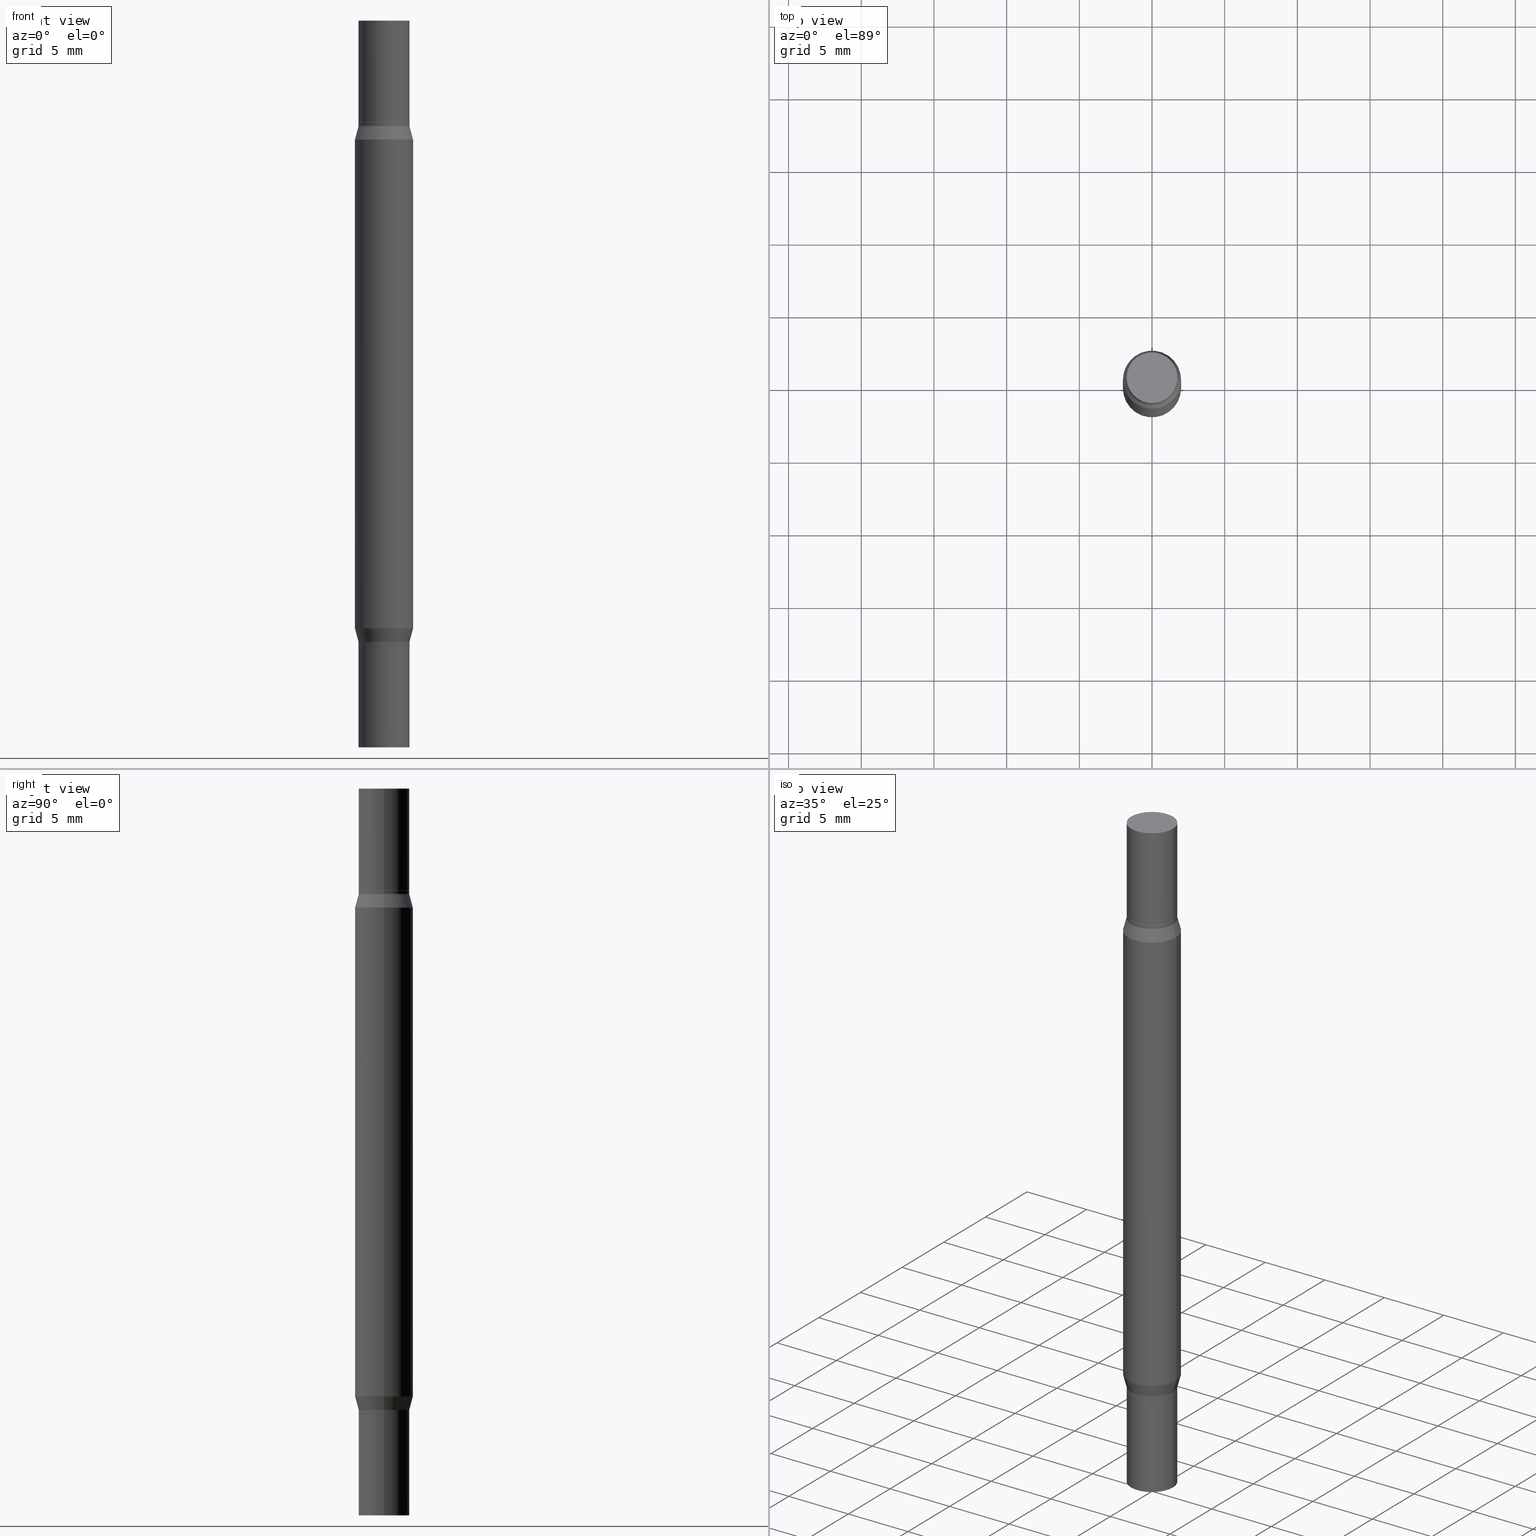
[diagram: canonical four-view strip — front | top / right | iso, engineering-drawing reading convention]
A machine part, canonical four-view strip (front | top / right | iso — engineering-drawing reading convention). The complete STEP part file that produces these views, byte-faithful:
ISO-10303-21;
HEADER;
FILE_DESCRIPTION (( 'STEP AP203' ),
    '1' );
FILE_NAME ('48910.STEP',
    '2024-03-04T16:12:19',
    ( '' ),
    ( '' ),
    'SwSTEP 2.0',
    'SolidWorks 2023',
    '' );
FILE_SCHEMA (( 'CONFIG_CONTROL_DESIGN' ));
ENDSEC;

DATA;
#1 = VERTEX_POINT ( 'NONE', #264 ) ;
#2 = DIRECTION ( 'NONE',  ( -2.438088387897959208E-29, -3.491805094961123683E-15, -1.000000000000000000 ) ) ;
#3 = CARTESIAN_POINT ( 'NONE',  ( -0.06890000000000007230, -8.163773080062677072E-18, 2.731847993664279982E-16 ) ) ;
#4 = APPROVAL_STATUS ( 'not_yet_approved' ) ;
#5 = ADVANCED_FACE ( 'NONE', ( #418 ), #39, .T. ) ;
#6 = CARTESIAN_POINT ( 'NONE',  ( 0.06890000000000000291, -1.478067006654360951E-15, -0.2856000000000000760 ) ) ;
#7 = CARTESIAN_POINT ( 'NONE',  ( 0.07875000000000001443, -6.297372956367045729E-15, -1.646139299545446466 ) ) ;
#8 = ORIENTED_EDGE ( 'NONE', *, *, #523, .T. ) ;
#9 = AXIS2_PLACEMENT_3D ( 'NONE', #358, #111, #765 ) ;
#10 = DIRECTION ( 'NONE',  ( 2.445468806185136597E-29, 3.491805094961124077E-15, 1.000000000000000000 ) ) ;
#11 = CIRCLE ( 'NONE', #621, 0.06890000000000007230 ) ;
#12 = CARTESIAN_POINT ( 'NONE',  ( -0.06890000000000000291, -5.242525661153185867E-16, -0.2856000000000000760 ) ) ;
#13 = CIRCLE ( 'NONE', #179, 0.06889999999999998903 ) ;
#14 = ORIENTED_EDGE ( 'NONE', *, *, #546, .T. ) ;
#15 = DIRECTION ( 'NONE',  ( 1.000000000000000000, -6.982962677686265922E-15, 0.000000000000000000 ) ) ;
#16 = CARTESIAN_POINT ( 'NONE',  ( -0.06890000000000000291, -5.076664919142526974E-16, -0.2856000000000000760 ) ) ;
#17 = ADVANCED_FACE ( 'NONE', ( #259 ), #904, .T. ) ;
#18 = APPROVAL_ROLE ( '' ) ;
#19 = CARTESIAN_POINT ( 'NONE',  ( 0.000000000000000000, -6.873299672471851415E-15, -1.968499999999999694 ) ) ;
#20 = ADVANCED_FACE ( 'NONE', ( #161 ), #230, .F. ) ;
#21 = ORIENTED_EDGE ( 'NONE', *, *, #416, .T. ) ;
#22 = CIRCLE ( 'NONE', #407, 0.07875000000000001443 ) ;
#23 = LINE ( 'NONE', #254, #733 ) ;
#24 = VECTOR ( 'NONE', #685, 39.37007874015748143 ) ;
#25 = SECURITY_CLASSIFICATION ( '', '', #449 ) ;
#26 = CARTESIAN_POINT ( 'NONE',  ( -0.06840000000000005798, -4.919225909388897670E-16, -0.2755999999999999006 ) ) ;
#27 = CC_DESIGN_DATE_AND_TIME_ASSIGNMENT ( #569, #326, ( #424 ) ) ;
#28 = ORIENTED_EDGE ( 'NONE', *, *, #107, .F. ) ;
#29 = VERTEX_POINT ( 'NONE', #955 ) ;
#30 = VERTEX_POINT ( 'NONE', #106 ) ;
#31 = PLANE ( 'NONE',  #964 ) ;
#32 = CARTESIAN_POINT ( 'NONE',  ( 0.06889999999999998903, -6.390109146350723310E-15, -1.692399999999999904 ) ) ;
#33 = EDGE_CURVE ( 'NONE', #796, #136, #286, .T. ) ;
#34 = ORIENTED_EDGE ( 'NONE', *, *, #401, .F. ) ;
#35 = VERTEX_POINT ( 'NONE', #422 ) ;
#36 = VERTEX_POINT ( 'NONE', #32 ) ;
#37 = DIRECTION ( 'NONE',  ( -2.445468806185136597E-29, 3.491481338843145583E-15, 1.000000000000000000 ) ) ;
#38 = FACE_OUTER_BOUND ( 'NONE', #928, .T. ) ;
#39 = CYLINDRICAL_SURFACE ( 'NONE', #684, 0.06890000000000007230 ) ;
#40 = MANIFOLD_SOLID_BREP ( 'Combine1', #332 ) ;
#41 = MANIFOLD_SOLID_BREP ( 'Mirror1[4]', #347 ) ;
#42 = DIRECTION ( 'NONE',  ( 1.000000000000000000, -6.982962677686261189E-15, 0.000000000000000000 ) ) ;
#43 = CARTESIAN_POINT ( 'NONE',  ( 4.115479453928965691E-29, -9.969408781617772122E-16, -0.2856000000000000760 ) ) ;
#44 = VECTOR ( 'NONE', #101, 39.37007874015748854 ) ;
#45 = AXIS2_PLACEMENT_3D ( 'NONE', #184, #777, #273 ) ;
#46 = PERSON_AND_ORGANIZATION ( #345, #794 ) ;
#47 = CONICAL_SURFACE ( 'NONE', #840, 0.06890000000000000291, 0.2617993877991507956 ) ;
#48 = EDGE_LOOP ( 'NONE', ( #456, #656 ) ) ;
#49 = DIRECTION ( 'NONE',  ( 2.445468806185136597E-29, 3.491805094961124077E-15, 1.000000000000000000 ) ) ;
#50 = ORIENTED_EDGE ( 'NONE', *, *, #112, .F. ) ;
#51 = EDGE_CURVE ( 'NONE', #605, #504, #960, .T. ) ;
#52 = DIRECTION ( 'NONE',  ( 1.000000000000000000, -6.982962677686265922E-15, 0.000000000000000000 ) ) ;
#53 = DIRECTION ( 'NONE',  ( -1.000000000000000000, 6.982962677686265922E-15, -2.260776888683160832E-33 ) ) ;
#54 = PERSON_AND_ORGANIZATION ( #345, #794 ) ;
#55 = LINE ( 'NONE', #58, #793 ) ;
#56 = EDGE_CURVE ( 'NONE', #805, #349, #770, .T. ) ;
#57 = CARTESIAN_POINT ( 'NONE',  ( 2.406952672487720357E-29, -3.436490507756365459E-15, -0.9842499999999998472 ) ) ;
#58 = CARTESIAN_POINT ( 'NONE',  ( 0.06840000000000005798, -1.439657474365906573E-15, -0.2755999999999999006 ) ) ;
#59 = CARTESIAN_POINT ( 'NONE',  ( 0.06890000000000007230, -7.354425800964435942E-15, -1.968499999999999694 ) ) ;
#60 = CONICAL_SURFACE ( 'NONE', #289, 0.06890000000000000291, 0.2617993877991507956 ) ;
#61 = AXIS2_PLACEMENT_3D ( 'NONE', #755, #394, #838 ) ;
#62 = EDGE_CURVE ( 'NONE', #796, #146, #716, .T. ) ;
#63 = CARTESIAN_POINT ( 'NONE',  ( -0.06890000000000007230, 4.895639449387095418E-16, -3.389146277185633520E-30 ) ) ;
#64 = CARTESIAN_POINT ( 'NONE',  ( -0.06840000000000005798, -5.424717527267651643E-15, -1.692899999999999849 ) ) ;
#65 = ADVANCED_FACE ( 'NONE', ( #38 ), #517, .T. ) ;
#66 = ADVANCED_FACE ( 'NONE', ( #493 ), #356, .F. ) ;
#67 = ORIENTED_EDGE ( 'NONE', *, *, #501, .F. ) ;
#68 = ADVANCED_FACE ( 'NONE', ( #568 ), #711, .T. ) ;
#69 = DIRECTION ( 'NONE',  ( -2.445468806185136597E-29, 3.491481338843145583E-15, 1.000000000000000000 ) ) ;
#70 = DIRECTION ( 'NONE',  ( 1.000000000000000000, -6.982962677686267499E-15, 0.000000000000000000 ) ) ;
#71 = DATE_TIME_ROLE ( 'classification_date' ) ;
#72 = MANIFOLD_SOLID_BREP ( 'Mirror1[3]', #655 ) ;
#73 = EDGE_LOOP ( 'NONE', ( #8, #427 ) ) ;
#74 = LINE ( 'NONE', #877, #926 ) ;
#75 = DIRECTION ( 'NONE',  ( 2.445468806185136597E-29, 3.491805094961124077E-15, 1.000000000000000000 ) ) ;
#76 = AXIS2_PLACEMENT_3D ( 'NONE', #726, #75, #70 ) ;
#77 = CIRCLE ( 'NONE', #145, 0.06889999999999998903 ) ;
#78 = AXIS2_PLACEMENT_3D ( 'NONE', #739, #69, #513 ) ;
#79 = DIRECTION ( 'NONE',  ( 2.445468806185136597E-29, 3.491805094961124077E-15, 1.000000000000000000 ) ) ;
#80 = AXIS2_PLACEMENT_3D ( 'NONE', #84, #391, #747 ) ;
#81 = DIRECTION ( 'NONE',  ( 1.000000000000000000, -6.982962677686265922E-15, 0.000000000000000000 ) ) ;
#82 = EDGE_CURVE ( 'NONE', #605, #242, #558, .T. ) ;
#83 = ORIENTED_EDGE ( 'NONE', *, *, #82, .F. ) ;
#84 = CARTESIAN_POINT ( 'NONE',  ( 0.000000000000000000, -6.873299672471851415E-15, -1.968499999999999694 ) ) ;
#85 = FACE_OUTER_BOUND ( 'NONE', #195, .T. ) ;
#86 = LINE ( 'NONE', #169, #688 ) ;
#87 = LINE ( 'NONE', #534, #773 ) ;
#88 = AXIS2_PLACEMENT_3D ( 'NONE', #475, #905, #168 ) ;
#89 = CARTESIAN_POINT ( 'NONE',  ( 0.06890000000000000291, -1.478067006654360951E-15, -0.2856000000000000760 ) ) ;
#90 = VECTOR ( 'NONE', #957, 39.37007874015748854 ) ;
#91 = CARTESIAN_POINT ( 'NONE',  ( 4.139934141990817236E-29, -9.620228272121656440E-16, -0.2755999999999999006 ) ) ;
#92 = AXIS2_PLACEMENT_3D ( 'NONE', #812, #280, #649 ) ;
#93 = EDGE_CURVE ( 'NONE', #136, #796, #348, .T. ) ;
#94 = CARTESIAN_POINT ( 'NONE',  ( -0.06890000000000007230, -8.163773080062737161E-18, -0.2755999999999999006 ) ) ;
#95 = CC_DESIGN_PERSON_AND_ORGANIZATION_ASSIGNMENT ( #213, #717, ( #888 ) ) ;
#96 = ADVANCED_FACE ( 'NONE', ( #953 ), #60, .T. ) ;
#97 = DIRECTION ( 'NONE',  ( 2.445468806185136597E-29, 3.491805094961124077E-15, 1.000000000000000000 ) ) ;
#98 = ADVANCED_FACE ( 'NONE', ( #126 ), #698, .F. ) ;
#99 = CC_DESIGN_PERSON_AND_ORGANIZATION_ASSIGNMENT ( #54, #963, ( #424 ) ) ;
#100 = DIRECTION ( 'NONE',  ( -2.445468806185136877E-29, -3.491805094961123683E-15, -1.000000000000000000 ) ) ;
#101 = DIRECTION ( 'NONE',  ( -0.2588190451025220162, 5.211531920934554197E-15, 0.9659258262890678681 ) ) ;
#102 = ORIENTED_EDGE ( 'NONE', *, *, #488, .F. ) ;
#103 = AXIS2_PLACEMENT_3D ( 'NONE', #91, #97, #751 ) ;
#104 = CARTESIAN_POINT ( 'NONE',  ( 0.07875000000000001443, -1.675210390171119696E-15, -0.3223607004545533949 ) ) ;
#105 = CIRCLE ( 'NONE', #306, 0.06890000000000000291 ) ;
#106 = CARTESIAN_POINT ( 'NONE',  ( 0.06890000000000000291, -6.356940073631712375E-15, -1.682899999999999618 ) ) ;
#107 = EDGE_CURVE ( 'NONE', #705, #181, #338, .T. ) ;
#108 = ORIENTED_EDGE ( 'NONE', *, *, #701, .F. ) ;
#109 = ORIENTED_EDGE ( 'NONE', *, *, #788, .F. ) ;
#110 = LINE ( 'NONE', #851, #658 ) ;
#111 = DIRECTION ( 'NONE',  ( -2.438088387897960049E-29, 3.491481338843145188E-15, 1.000000000000000000 ) ) ;
#112 = EDGE_CURVE ( 'NONE', #181, #937, #575, .T. ) ;
#113 = DIRECTION ( 'NONE',  ( 1.000000000000000000, 0.000000000000000000, 0.000000000000000000 ) ) ;
#114 = VERTEX_POINT ( 'NONE', #26 ) ;
#115 = DIRECTION ( 'NONE',  ( -1.000000000000000000, 6.982962677686265922E-15, -2.260776888683160832E-33 ) ) ;
#116 = EDGE_LOOP ( 'NONE', ( #554, #435, #620, #668 ) ) ;
#117 = UNCERTAINTY_MEASURE_WITH_UNIT (LENGTH_MEASURE( 1.000000000000000082E-05 ), #712, 'distance_accuracy_value', 'NONE');
#118 = ORIENTED_EDGE ( 'NONE', *, *, #311, .F. ) ;
#119 = DIRECTION ( 'NONE',  ( 2.445468806185136597E-29, 3.491805094961124077E-15, 1.000000000000000000 ) ) ;
#120 =( LENGTH_UNIT ( ) NAMED_UNIT ( * ) SI_UNIT ( $, .METRE. ) );
#121 = ORIENTED_EDGE ( 'NONE', *, *, #944, .F. ) ;
#122 = ORIENTED_EDGE ( 'NONE', *, *, #214, .T. ) ;
#123 = CARTESIAN_POINT ( 'NONE',  ( 4.115479453928965691E-29, -5.875813945139128637E-15, -1.682899999999999618 ) ) ;
#124 = ORIENTED_EDGE ( 'NONE', *, *, #523, .F. ) ;
#125 = ORIENTED_EDGE ( 'NONE', *, *, #56, .T. ) ;
#126 = FACE_OUTER_BOUND ( 'NONE', #343, .T. ) ;
#127 = CONICAL_SURFACE ( 'NONE', #976, 0.06840000000000005798, 0.7853981633974739252 ) ;
#128 = VECTOR ( 'NONE', #706, 39.37007874015748143 ) ;
#129 = CALENDAR_DATE ( 2024, 4, 3 ) ;
#130 = AXIS2_PLACEMENT_3D ( 'NONE', #873, #437, #113 ) ;
#131 = DIRECTION ( 'NONE',  ( 1.000000000000000000, -6.982962677686273810E-15, 0.000000000000000000 ) ) ;
#132 = EDGE_CURVE ( 'NONE', #30, #390, #939, .T. ) ;
#133 = DIRECTION ( 'NONE',  ( 1.000000000000000000, -6.982962677686273810E-15, 0.000000000000000000 ) ) ;
#134 =( NAMED_UNIT ( * ) SI_UNIT ( $, .STERADIAN. ) SOLID_ANGLE_UNIT ( ) );
#135 = DIRECTION ( 'NONE',  ( -2.445468806185136597E-29, -3.491805094961124077E-15, -1.000000000000000000 ) ) ;
#136 = VERTEX_POINT ( 'NONE', #487 ) ;
#137 = EDGE_CURVE ( 'NONE', #146, #729, #426, .T. ) ;
#138 = CARTESIAN_POINT ( 'NONE',  ( 4.139934141990817236E-29, -9.620228272121656440E-16, -0.2755999999999999006 ) ) ;
#139 = ADVANCED_FACE ( 'NONE', ( #633 ), #127, .T. ) ;
#140 = ORIENTED_EDGE ( 'NONE', *, *, #425, .F. ) ;
#141 = ADVANCED_FACE ( 'NONE', ( #784 ), #193, .T. ) ;
#142 = EDGE_LOOP ( 'NONE', ( #909, #274 ) ) ;
#143 = DIRECTION ( 'NONE',  ( -2.445468806185136597E-29, -3.491805094961124077E-15, -1.000000000000000000 ) ) ;
#144 = LINE ( 'NONE', #819, #320 ) ;
#145 = AXIS2_PLACEMENT_3D ( 'NONE', #887, #897, #526 ) ;
#146 = VERTEX_POINT ( 'NONE', #590 ) ;
#147 = SHAPE_DEFINITION_REPRESENTATION ( #740, #738 ) ;
#148 = AXIS2_PLACEMENT_3D ( 'NONE', #162, #228, #244 ) ;
#149 = ORIENTED_EDGE ( 'NONE', *, *, #664, .F. ) ;
#150 = DIRECTION ( 'NONE',  ( -2.445468806185136597E-29, -3.491805094961124077E-15, -1.000000000000000000 ) ) ;
#151 = APPLICATION_CONTEXT ( 'configuration controlled 3d designs of mechanical parts and assemblies' ) ;
#152 = DIRECTION ( 'NONE',  ( 1.000000000000000000, -6.982962677686267499E-15, 0.000000000000000000 ) ) ;
#153 = ORIENTED_EDGE ( 'NONE', *, *, #33, .F. ) ;
#154 = DIRECTION ( 'NONE',  ( 2.445468806185136597E-29, 3.491805094961124077E-15, 1.000000000000000000 ) ) ;
#155 = DIRECTION ( 'NONE',  ( 1.000000000000000000, -6.982962677686265922E-15, 0.000000000000000000 ) ) ;
#156 = ORIENTED_EDGE ( 'NONE', *, *, #648, .F. ) ;
#157 = ADVANCED_FACE ( 'NONE', ( #297 ), #216, .T. ) ;
#158 = ORIENTED_EDGE ( 'NONE', *, *, #452, .F. ) ;
#159 = CARTESIAN_POINT ( 'NONE',  ( 0.06890000000000007230, -4.808074715334629460E-16, 2.731847993664263218E-16 ) ) ;
#160 = EDGE_CURVE ( 'NONE', #362, #845, #968, .T. ) ;
#161 = FACE_OUTER_BOUND ( 'NONE', #197, .T. ) ;
#162 = CARTESIAN_POINT ( 'NONE',  ( 0.000000000000000000, -6.873299672471851415E-15, -1.968499999999999694 ) ) ;
#163 = VECTOR ( 'NONE', #847, 39.37007874015748854 ) ;
#164 = CONICAL_SURFACE ( 'NONE', #408, 0.06840000000000005798, 0.7853981633974739252 ) ;
#165 = EDGE_CURVE ( 'NONE', #729, #146, #77, .T. ) ;
#166 = CC_DESIGN_APPROVAL ( #461, ( #424 ) ) ;
#167 = FACE_OUTER_BOUND ( 'NONE', #874, .T. ) ;
#168 = DIRECTION ( 'NONE',  ( 1.000000000000000000, -6.982962677686267499E-15, 0.000000000000000000 ) ) ;
#169 = CARTESIAN_POINT ( 'NONE',  ( -0.06890000000000000291, -6.400611360425393480E-15, -1.968499999999999694 ) ) ;
#170 = CARTESIAN_POINT ( 'NONE',  ( 4.025582307673839975E-29, -5.747464645499252384E-15, -1.646139299545446466 ) ) ;
#171 = FACE_OUTER_BOUND ( 'NONE', #73, .T. ) ;
#172 = LINE ( 'NONE', #387, #24 ) ;
#173 = EDGE_CURVE ( 'NONE', #697, #524, #892, .T. ) ;
#174 = EDGE_CURVE ( 'NONE', #729, #805, #144, .T. ) ;
#175 = AXIS2_PLACEMENT_3D ( 'NONE', #581, #439, #823 ) ;
#176 = DIRECTION ( 'NONE',  ( 0.2588190451025220162, -5.180148453816010357E-15, -0.9659258262890678681 ) ) ;
#177 = AXIS2_PLACEMENT_3D ( 'NONE', #790, #485, #641 ) ;
#178 = DIRECTION ( 'NONE',  ( -2.445468806185136877E-29, -3.491805094961123683E-15, -1.000000000000000000 ) ) ;
#179 = AXIS2_PLACEMENT_3D ( 'NONE', #681, #79, #822 ) ;
#180 = DIRECTION ( 'NONE',  ( 0.2588190451025220162, -5.180148453816010357E-15, -0.9659258262890678681 ) ) ;
#181 = VERTEX_POINT ( 'NONE', #737 ) ;
#182 = DIRECTION ( 'NONE',  ( 1.000000000000000000, -6.982962677686258822E-15, 0.000000000000000000 ) ) ;
#183 = ORIENTED_EDGE ( 'NONE', *, *, #701, .T. ) ;
#184 = CARTESIAN_POINT ( 'NONE',  ( 0.000000000000000000, 0.000000000000000000, 0.000000000000000000 ) ) ;
#185 = DIRECTION ( 'NONE',  ( -2.438088387897959208E-29, -3.491805094961123683E-15, -1.000000000000000000 ) ) ;
#186 = AXIS2_PLACEMENT_3D ( 'NONE', #970, #601, #133 ) ;
#187 = EDGE_LOOP ( 'NONE', ( #686, #772 ) ) ;
#188 = DIRECTION ( 'NONE',  ( 2.445468806185136597E-29, 3.491805094961124077E-15, 1.000000000000000000 ) ) ;
#189 = AXIS2_PLACEMENT_3D ( 'NONE', #696, #492, #42 ) ;
#190 = CC_DESIGN_APPROVAL ( #516, ( #25 ) ) ;
#191 = DIRECTION ( 'NONE',  ( 1.000000000000000000, -6.982962677686267499E-15, 0.000000000000000000 ) ) ;
#192 = CARTESIAN_POINT ( 'NONE',  ( 4.811261284926255481E-16, 0.06889999999999911473, -0.2756000000000001782 ) ) ;
#193 = CYLINDRICAL_SURFACE ( 'NONE', #186, 0.07875000000000001443 ) ;
#194 = EDGE_CURVE ( 'NONE', #222, #275, #962, .T. ) ;
#195 = EDGE_LOOP ( 'NONE', ( #911, #124, #972, #261 ) ) ;
#196 = EDGE_CURVE ( 'NONE', #588, #217, #463, .T. ) ;
#197 = EDGE_LOOP ( 'NONE', ( #768, #966 ) ) ;
#198 = DIRECTION ( 'NONE',  ( 1.000000000000000000, -6.982962677686258822E-15, 0.000000000000000000 ) ) ;
#199 = DIRECTION ( 'NONE',  ( 1.000000000000000000, -6.982962677686267499E-15, 0.000000000000000000 ) ) ;
#200 = COORDINATED_UNIVERSAL_TIME_OFFSET ( 5, 0, .BEHIND. ) ;
#201 = ORIENTED_EDGE ( 'NONE', *, *, #239, .T. ) ;
#202 = FACE_OUTER_BOUND ( 'NONE', #677, .T. ) ;
#203 = AXIS2_PLACEMENT_3D ( 'NONE', #603, #829, #328 ) ;
#204 = CARTESIAN_POINT ( 'NONE',  ( -0.06890000000000000291, -5.386250000200419884E-15, -1.682899999999999618 ) ) ;
#205 = ORIENTED_EDGE ( 'NONE', *, *, #214, .F. ) ;
#206 = CIRCLE ( 'NONE', #941, 0.06890000000000007230 ) ;
#207 = EDGE_CURVE ( 'NONE', #217, #405, #520, .T. ) ;
#208 = CIRCLE ( 'NONE', #321, 0.06890000000000007230 ) ;
#209 = CARTESIAN_POINT ( 'NONE',  ( 4.811261284926255481E-16, 0.06889999999999911473, -0.2756000000000001782 ) ) ;
#210 = VECTOR ( 'NONE', #236, 39.37007874015748143 ) ;
#211 = DIRECTION ( 'NONE',  ( 1.000000000000000000, -6.982962677686267499E-15, 0.000000000000000000 ) ) ;
#212 = LINE ( 'NONE', #59, #732 ) ;
#213 = PERSON_AND_ORGANIZATION ( #345, #794 ) ;
#214 = EDGE_CURVE ( 'NONE', #852, #705, #670, .T. ) ;
#215 = CARTESIAN_POINT ( 'NONE',  ( 4.813905344975441835E-29, 3.186569591213228268E-19, 2.731847993664263218E-16 ) ) ;
#216 = CYLINDRICAL_SURFACE ( 'NONE', #220, 0.06890000000000007230 ) ;
#217 = VERTEX_POINT ( 'NONE', #458 ) ;
#218 = CARTESIAN_POINT ( 'NONE',  ( 0.000000000000000000, -6.873299672471851415E-15, -1.968499999999999694 ) ) ;
#219 = DIRECTION ( 'NONE',  ( 1.000000000000000000, -6.982962677686265922E-15, 0.000000000000000000 ) ) ;
#220 = AXIS2_PLACEMENT_3D ( 'NONE', #224, #802, #436 ) ;
#221 = AXIS2_PLACEMENT_3D ( 'NONE', #318, #530, #81 ) ;
#222 = VERTEX_POINT ( 'NONE', #744 ) ;
#223 = DIRECTION ( 'NONE',  ( 1.000000000000000000, -6.982962677686265922E-15, 0.000000000000000000 ) ) ;
#224 = CARTESIAN_POINT ( 'NONE',  ( 0.000000000000000000, -6.873299672471851415E-15, -1.968499999999999694 ) ) ;
#225 = EDGE_CURVE ( 'NONE', #222, #697, #212, .T. ) ;
#226 = ORIENTED_EDGE ( 'NONE', *, *, #974, .T. ) ;
#227 = CARTESIAN_POINT ( 'NONE',  ( 0.000000000000000000, 0.000000000000000000, -0.9842499999999998472 ) ) ;
#228 = DIRECTION ( 'NONE',  ( -2.445468806185136597E-29, -3.491805094961124077E-15, -1.000000000000000000 ) ) ;
#229 = DIRECTION ( 'NONE',  ( 1.000000000000000000, -6.982962677686265922E-15, 0.000000000000000000 ) ) ;
#230 = PLANE ( 'NONE',  #498 ) ;
#231 = CARTESIAN_POINT ( 'NONE',  ( 4.813905344975441835E-29, 3.186569591213228268E-19, 2.731847993664263218E-16 ) ) ;
#232 = AXIS2_PLACEMENT_3D ( 'NONE', #170, #247, #617 ) ;
#233 = CIRCLE ( 'NONE', #189, 0.07875000000000001443 ) ;
#234 = ORIENTED_EDGE ( 'NONE', *, *, #538, .T. ) ;
#235 = CIRCLE ( 'NONE', #466, 0.06889999999999998903 ) ;
#236 = DIRECTION ( 'NONE',  ( -2.445468806185136877E-29, 3.491481338843145188E-15, 1.000000000000000000 ) ) ;
#237 = EDGE_CURVE ( 'NONE', #883, #242, #22, .T. ) ;
#238 = DIRECTION ( 'NONE',  ( 1.000000000000000000, -6.982962677686265922E-15, 0.000000000000000000 ) ) ;
#239 = EDGE_CURVE ( 'NONE', #412, #978, #367, .T. ) ;
#240 = EDGE_CURVE ( 'NONE', #504, #883, #666, .T. ) ;
#241 = ORIENTED_EDGE ( 'NONE', *, *, #787, .T. ) ;
#242 = VERTEX_POINT ( 'NONE', #879 ) ;
#243 = DIRECTION ( 'NONE',  ( -2.438088387897959208E-29, -3.491805094961123683E-15, -1.000000000000000000 ) ) ;
#244 = DIRECTION ( 'NONE',  ( 1.000000000000000000, -6.982962677686265922E-15, 0.000000000000000000 ) ) ;
#245 = EDGE_CURVE ( 'NONE', #242, #883, #687, .T. ) ;
#246 = FACE_OUTER_BOUND ( 'NONE', #142, .T. ) ;
#247 = DIRECTION ( 'NONE',  ( -2.445468806185136597E-29, 3.491481338843145583E-15, 1.000000000000000000 ) ) ;
#248 = ADVANCED_FACE ( 'NONE', ( #814 ), #547, .T. ) ;
#249 = CC_DESIGN_PERSON_AND_ORGANIZATION_ASSIGNMENT ( #587, #465, ( #337 ) ) ;
#250 = AXIS2_PLACEMENT_3D ( 'NONE', #325, #543, #691 ) ;
#251 = PERSON_AND_ORGANIZATION ( #345, #794 ) ;
#252 = ORIENTED_EDGE ( 'NONE', *, *, #857, .F. ) ;
#253 = AXIS2_PLACEMENT_3D ( 'NONE', #562, #188, #344 ) ;
#254 = CARTESIAN_POINT ( 'NONE',  ( 0.06890000000000000291, -1.478067006654360951E-15, -0.2856000000000000760 ) ) ;
#255 = EDGE_CURVE ( 'NONE', #29, #267, #760, .T. ) ;
#256 = LINE ( 'NONE', #298, #90 ) ;
#257 = CARTESIAN_POINT ( 'NONE',  ( 4.139934141990817236E-29, -5.910728758527560286E-15, -1.692899999999999849 ) ) ;
#258 = VERTEX_POINT ( 'NONE', #652 ) ;
#259 = FACE_OUTER_BOUND ( 'NONE', #415, .T. ) ;
#260 = ORIENTED_EDGE ( 'NONE', *, *, #56, .F. ) ;
#261 = ORIENTED_EDGE ( 'NONE', *, *, #857, .T. ) ;
#262 = FACE_OUTER_BOUND ( 'NONE', #48, .T. ) ;
#263 = CARTESIAN_POINT ( 'NONE',  ( 4.139934141990817236E-29, -9.620228272121656440E-16, -0.2755999999999999006 ) ) ;
#264 = CARTESIAN_POINT ( 'NONE',  ( 0.06840000000000005798, -6.388363405681301806E-15, -1.692899999999999849 ) ) ;
#265 = AXIS2_PLACEMENT_3D ( 'NONE', #644, #185, #870 ) ;
#266 = CIRCLE ( 'NONE', #103, 0.06890000000000007230 ) ;
#267 = VERTEX_POINT ( 'NONE', #959 ) ;
#268 = LINE ( 'NONE', #624, #128 ) ;
#269 = AXIS2_PLACEMENT_3D ( 'NONE', #861, #340, #925 ) ;
#270 = CIRCLE ( 'NONE', #916, 0.06890000000000007230 ) ;
#271 = CARTESIAN_POINT ( 'NONE',  ( 4.138711407587725556E-29, -9.637687297596452363E-16, -0.2760999999999998455 ) ) ;
#272 = CALENDAR_DATE ( 2024, 4, 3 ) ;
#273 = DIRECTION ( 'NONE',  ( 1.000000000000000000, -6.982962677686265922E-15, 4.876176775795935232E-29 ) ) ;
#274 = ORIENTED_EDGE ( 'NONE', *, *, #606, .T. ) ;
#275 = VERTEX_POINT ( 'NONE', #595 ) ;
#276 = DIRECTION ( 'NONE',  ( 1.000000000000000000, -6.982962677686267499E-15, 0.000000000000000000 ) ) ;
#277 = EDGE_CURVE ( 'NONE', #800, #978, #559, .T. ) ;
#278 = EDGE_CURVE ( 'NONE', #978, #800, #266, .T. ) ;
#279 = DIRECTION ( 'NONE',  ( -2.445468806185136597E-29, -3.491805094961124077E-15, -1.000000000000000000 ) ) ;
#280 = DIRECTION ( 'NONE',  ( -2.445468806185136597E-29, 3.491481338843145583E-15, 1.000000000000000000 ) ) ;
#281 = ORIENTED_EDGE ( 'NONE', *, *, #898, .F. ) ;
#282 = ORIENTED_EDGE ( 'NONE', *, *, #255, .F. ) ;
#283 = EDGE_CURVE ( 'NONE', #35, #605, #919, .T. ) ;
#284 = CARTESIAN_POINT ( 'NONE',  ( -0.06890000000000000291, 4.895639449387090487E-16, -3.389146277185630017E-30 ) ) ;
#285 = ORIENTED_EDGE ( 'NONE', *, *, #319, .T. ) ;
#286 = CIRCLE ( 'NONE', #444, 0.06840000000000005798 ) ;
#287 = DIRECTION ( 'NONE',  ( -2.445468806185136877E-29, 3.491481338843145188E-15, 1.000000000000000000 ) ) ;
#288 = ORIENTED_EDGE ( 'NONE', *, *, #283, .F. ) ;
#289 = AXIS2_PLACEMENT_3D ( 'NONE', #43, #342, #791 ) ;
#290 = DIRECTION ( 'NONE',  ( -2.445468806185136877E-29, 3.491481338843145188E-15, 1.000000000000000000 ) ) ;
#291 = ORIENTED_EDGE ( 'NONE', *, *, #319, .F. ) ;
#292 = CIRCLE ( 'NONE', #597, 0.06890000000000000291 ) ;
#293 = APPROVAL_PERSON_ORGANIZATION ( #667, #516, #372 ) ;
#294 = FACE_OUTER_BOUND ( 'NONE', #582, .T. ) ;
#295 = ADVANCED_FACE ( 'NONE', ( #612 ), #403, .F. ) ;
#296 = CARTESIAN_POINT ( 'NONE',  ( -0.07875000000000001443, -5.850378619788178690E-16, -0.3223607004545533949 ) ) ;
#297 = FACE_OUTER_BOUND ( 'NONE', #459, .T. ) ;
#298 = CARTESIAN_POINT ( 'NONE',  ( -0.06890000000000000291, -5.242525661153185867E-16, -0.2856000000000000760 ) ) ;
#299 = DIRECTION ( 'NONE',  ( 0.000000000000000000, 1.000000000000000000, -3.469013325287952504E-15 ) ) ;
#300 = EDGE_LOOP ( 'NONE', ( #28, #929, #917, #924 ) ) ;
#301 = EDGE_LOOP ( 'NONE', ( #484, #260, #241, #533 ) ) ;
#302 = DIRECTION ( 'NONE',  ( -2.445468806185136597E-29, 3.491481338843145583E-15, 1.000000000000000000 ) ) ;
#303 = DIRECTION ( 'NONE',  ( 2.445468806185136597E-29, 3.491805094961124077E-15, 1.000000000000000000 ) ) ;
#304 = ADVANCED_FACE ( 'NONE', ( #836 ), #718, .T. ) ;
#305 = AXIS2_PLACEMENT_3D ( 'NONE', #948, #497, #495 ) ;
#306 = AXIS2_PLACEMENT_3D ( 'NONE', #552, #49, #404 ) ;
#307 = AXIS2_PLACEMENT_3D ( 'NONE', #725, #577, #131 ) ;
#308 = ORIENTED_EDGE ( 'NONE', *, *, #51, .F. ) ;
#309 = DIRECTION ( 'NONE',  ( 0.000000000000000000, 3.491643216902134435E-15, 1.000000000000000000 ) ) ;
#310 = CARTESIAN_POINT ( 'NONE',  ( 0.06890000000000000291, -7.354425800964435942E-15, -1.968499999999999694 ) ) ;
#311 = EDGE_CURVE ( 'NONE', #504, #605, #395, .T. ) ;
#312 = ORIENTED_EDGE ( 'NONE', *, *, #721, .T. ) ;
#313 = DIRECTION ( 'NONE',  ( 1.000000000000000000, -6.982962677686265922E-15, 2.260776888683160832E-33 ) ) ;
#314 = DIRECTION ( 'NONE',  ( 1.000000000000000000, -6.982962677686265922E-15, 0.000000000000000000 ) ) ;
#315 = ADVANCED_FACE ( 'NONE', ( #694 ), #915, .T. ) ;
#316 = DATE_AND_TIME ( #803, #965 ) ;
#317 = LINE ( 'NONE', #89, #355 ) ;
#318 = CARTESIAN_POINT ( 'NONE',  ( 4.115479453928965691E-29, -9.969408781617772122E-16, -0.2856000000000000760 ) ) ;
#319 = EDGE_CURVE ( 'NONE', #390, #937, #333, .T. ) ;
#320 = VECTOR ( 'NONE', #741, 39.37007874015748143 ) ;
#321 = AXIS2_PLACEMENT_3D ( 'NONE', #502, #572, #223 ) ;
#322 = FACE_OUTER_BOUND ( 'NONE', #187, .T. ) ;
#323 = FACE_OUTER_BOUND ( 'NONE', #441, .T. ) ;
#324 = DIRECTION ( 'NONE',  ( 1.000000000000000000, -6.982962677686258822E-15, 0.000000000000000000 ) ) ;
#325 = CARTESIAN_POINT ( 'NONE',  ( 4.854693202492024183E-29, 5.872919042354616743E-17, 2.731847993664263218E-16 ) ) ;
#326 = DATE_TIME_ROLE ( 'creation_date' ) ;
#327 = ORIENTED_EDGE ( 'NONE', *, *, #112, .T. ) ;
#328 = DIRECTION ( 'NONE',  ( 1.000000000000000000, -6.982962677686265922E-15, 0.000000000000000000 ) ) ;
#329 = EDGE_CURVE ( 'NONE', #275, #524, #87, .T. ) ;
#330 = ORIENTED_EDGE ( 'NONE', *, *, #237, .F. ) ;
#331 = CARTESIAN_POINT ( 'NONE',  ( 0.000000000000000000, -6.873299672471851415E-15, -1.968499999999999694 ) ) ;
#332 = CLOSED_SHELL ( 'NONE', ( #899, #420, #742, #625, #756, #17, #248, #66, #679, #961, #834, #141, #304, #68, #65, #98 ) ) ;
#333 = CIRCLE ( 'NONE', #232, 0.07875000000000001443 ) ;
#334 = AXIS2_PLACEMENT_3D ( 'NONE', #589, #150, #669 ) ;
#335 = LOCAL_TIME ( 11, 12, 19.00000000000000000, #200 ) ;
#336 = DIRECTION ( 'NONE',  ( -1.000000000000000000, 6.982962677686265922E-15, -4.876176775795935793E-29 ) ) ;
#337 = PRODUCT_DEFINITION_FORMATION_WITH_SPECIFIED_SOURCE ( 'ANY', '', #888, .NOT_KNOWN. ) ;
#338 = LINE ( 'NONE', #284, #826 ) ;
#339 = ORIENTED_EDGE ( 'NONE', *, *, #194, .T. ) ;
#340 = DIRECTION ( 'NONE',  ( -2.438088387897960049E-29, 3.491481338843145188E-15, 1.000000000000000000 ) ) ;
#341 = ORIENTED_EDGE ( 'NONE', *, *, #788, .T. ) ;
#342 = DIRECTION ( 'NONE',  ( -2.445468806185136597E-29, -3.491805094961124077E-15, -1.000000000000000000 ) ) ;
#343 = EDGE_LOOP ( 'NONE', ( #557, #158 ) ) ;
#344 = DIRECTION ( 'NONE',  ( 1.000000000000000000, -6.982962677686267499E-15, 0.000000000000000000 ) ) ;
#345 = PERSON ( 'UNSPECIFIED', 'UNSPECIFIED', 'UNSPECIFIED', ('UNSPECIFIED'), ('UNSPECIFIED'), ('UNSPECIFIED') ) ;
#346 = DIRECTION ( 'NONE',  ( -2.445468806185136597E-29, 3.491481338843145583E-15, 1.000000000000000000 ) ) ;
#347 = CLOSED_SHELL ( 'NONE', ( #947, #850, #5, #20 ) ) ;
#348 = CIRCLE ( 'NONE', #576, 0.06840000000000005798 ) ;
#349 = VERTEX_POINT ( 'NONE', #16 ) ;
#350 = FACE_OUTER_BOUND ( 'NONE', #673, .T. ) ;
#351 = EDGE_CURVE ( 'NONE', #114, #630, #366, .T. ) ;
#352 = CIRCLE ( 'NONE', #521, 0.07875000000000001443 ) ;
#353 = ADVANCED_FACE ( 'NONE', ( #85 ), #164, .T. ) ;
#354 = ORIENTED_EDGE ( 'NONE', *, *, #132, .T. ) ;
#355 = VECTOR ( 'NONE', #176, 39.37007874015748854 ) ;
#356 = PLANE ( 'NONE',  #265 ) ;
#357 = DIRECTION ( 'NONE',  ( 1.000000000000000000, -6.982962677686265922E-15, 0.000000000000000000 ) ) ;
#358 = CARTESIAN_POINT ( 'NONE',  ( 4.139934141990817236E-29, -5.910728758527560286E-15, -1.692899999999999849 ) ) ;
#359 = DIRECTION ( 'NONE',  ( 1.000000000000000000, -6.982962677686265922E-15, 4.876176775795935232E-29 ) ) ;
#360 = CARTESIAN_POINT ( 'NONE',  ( 4.139934141990817236E-29, -9.620228272121656440E-16, -0.2755999999999999006 ) ) ;
#361 = DIRECTION ( 'NONE',  ( -2.445468806185136597E-29, -3.491805094961124077E-15, -1.000000000000000000 ) ) ;
#362 = VERTEX_POINT ( 'NONE', #832 ) ;
#363 = MECHANICAL_CONTEXT ( 'NONE', #151, 'mechanical' ) ;
#364 = ADVANCED_FACE ( 'NONE', ( #392 ), #759, .T. ) ;
#365 = CARTESIAN_POINT ( 'NONE',  ( 4.813905344975441835E-29, -6.872981015512731707E-15, -1.968500000000000139 ) ) ;
#366 = CIRCLE ( 'NONE', #88, 0.06840000000000005798 ) ;
#367 = LINE ( 'NONE', #447, #855 ) ;
#368 = CONICAL_SURFACE ( 'NONE', #221, 0.06890000000000000291, 0.2617993877991507956 ) ;
#369 = EDGE_LOOP ( 'NONE', ( #339, #746 ) ) ;
#370 = CARTESIAN_POINT ( 'NONE',  ( 0.000000000000000000, -6.873299672471851415E-15, -1.968499999999999694 ) ) ;
#371 = DIRECTION ( 'NONE',  ( -2.445468806185136877E-29, -3.491805094961123683E-15, -1.000000000000000000 ) ) ;
#372 = APPROVAL_ROLE ( '' ) ;
#373 = FACE_OUTER_BOUND ( 'NONE', #472, .T. ) ;
#374 = ADVANCED_FACE ( 'NONE', ( #471 ), #368, .T. ) ;
#375 = DIRECTION ( 'NONE',  ( -2.445468806185136877E-29, -3.491805094961123683E-15, -1.000000000000000000 ) ) ;
#376 = MANIFOLD_SOLID_BREP ( 'Body-Move/Copy2[1]', #499 ) ;
#377 = ORIENTED_EDGE ( 'NONE', *, *, #574, .T. ) ;
#378 = DIRECTION ( 'NONE',  ( -2.445468806185136877E-29, -3.491805094961123683E-15, -1.000000000000000000 ) ) ;
#379 = EDGE_LOOP ( 'NONE', ( #288, #109, #377, #650 ) ) ;
#380 = CARTESIAN_POINT ( 'NONE',  ( 0.07875000000000001443, -7.423207983339645550E-15, -1.968499999999999694 ) ) ;
#381 = EDGE_CURVE ( 'NONE', #275, #222, #893, .T. ) ;
#382 = AXIS2_PLACEMENT_3D ( 'NONE', #400, #922, #763 ) ;
#383 = CALENDAR_DATE ( 2024, 4, 3 ) ;
#384 = CIRCLE ( 'NONE', #253, 0.06840000000000005798 ) ;
#385 = ORIENTED_EDGE ( 'NONE', *, *, #898, .T. ) ;
#386 = PLANE ( 'NONE',  #561 ) ;
#387 = CARTESIAN_POINT ( 'NONE',  ( 0.07875000000000001443, -7.423207983339645550E-15, -1.968499999999999694 ) ) ;
#388 = COORDINATED_UNIVERSAL_TIME_OFFSET ( 5, 0, .BEHIND. ) ;
#389 = EDGE_LOOP ( 'NONE', ( #908, #699, #783, #486 ) ) ;
#390 = VERTEX_POINT ( 'NONE', #7 ) ;
#391 = DIRECTION ( 'NONE',  ( -2.445468806185136597E-29, -3.491805094961124077E-15, -1.000000000000000000 ) ) ;
#392 = FACE_OUTER_BOUND ( 'NONE', #116, .T. ) ;
#393 = CARTESIAN_POINT ( 'NONE',  ( 4.138711407587725556E-29, -5.908983017858139571E-15, -1.692399999999999904 ) ) ;
#394 = DIRECTION ( 'NONE',  ( -2.445468806185136597E-29, 3.491481338843145583E-15, 1.000000000000000000 ) ) ;
#395 = CIRCLE ( 'NONE', #382, 0.07875000000000001443 ) ;
#396 = EDGE_CURVE ( 'NONE', #1, #852, #675, .T. ) ;
#397 = CIRCLE ( 'NONE', #638, 0.06890000000000007230 ) ;
#398 = CIRCLE ( 'NONE', #598, 0.06890000000000000291 ) ;
#399 = DIRECTION ( 'NONE',  ( 1.000000000000000000, -6.982962677686267499E-15, 0.000000000000000000 ) ) ;
#400 = CARTESIAN_POINT ( 'NONE',  ( 4.025582307673839975E-29, -1.125302079303325561E-15, -0.3223607004545533949 ) ) ;
#401 = EDGE_CURVE ( 'NONE', #29, #390, #172, .T. ) ;
#402 = COORDINATED_UNIVERSAL_TIME_OFFSET ( 5, 0, .BEHIND. ) ;
#403 = PLANE ( 'NONE',  #250 ) ;
#404 = DIRECTION ( 'NONE',  ( 1.000000000000000000, -6.982962677686265922E-15, 0.000000000000000000 ) ) ;
#405 = VERTEX_POINT ( 'NONE', #680 ) ;
#406 = CARTESIAN_POINT ( 'NONE',  ( 4.025582307673839975E-29, -1.125302079303325561E-15, -0.3223607004545533949 ) ) ;
#407 = AXIS2_PLACEMENT_3D ( 'NONE', #57, #808, #975 ) ;
#408 = AXIS2_PLACEMENT_3D ( 'NONE', #749, #541, #615 ) ;
#409 = ORIENTED_EDGE ( 'NONE', *, *, #174, .T. ) ;
#410 = CARTESIAN_POINT ( 'NONE',  ( 4.811261284926255481E-16, 0.06889999999999416036, -1.692900000000000071 ) ) ;
#411 = DIRECTION ( 'NONE',  ( 1.000000000000000000, -6.982962677686267499E-15, 0.000000000000000000 ) ) ;
#412 = VERTEX_POINT ( 'NONE', #3 ) ;
#413 = FACE_OUTER_BOUND ( 'NONE', #881, .T. ) ;
#414 = CC_DESIGN_DATE_AND_TIME_ASSIGNMENT ( #815, #71, ( #25 ) ) ;
#415 = EDGE_LOOP ( 'NONE', ( #734, #627, #431, #868 ) ) ;
#416 = EDGE_CURVE ( 'NONE', #362, #632, #914, .T. ) ;
#417 = DIRECTION ( 'NONE',  ( 1.000000000000000000, -6.982962677686267499E-15, 0.000000000000000000 ) ) ;
#418 = FACE_OUTER_BOUND ( 'NONE', #849, .T. ) ;
#419 = CARTESIAN_POINT ( 'NONE',  ( 0.000000000000000000, 0.000000000000000000, 0.000000000000000000 ) ) ;
#420 = ADVANCED_FACE ( 'NONE', ( #323 ), #631, .T. ) ;
#421 = CARTESIAN_POINT ( 'NONE',  ( 4.115479453928965691E-29, -9.969408781617772122E-16, -0.2856000000000000760 ) ) ;
#422 = CARTESIAN_POINT ( 'NONE',  ( -0.06890000000000000291, -5.076664919142526974E-16, -0.2856000000000000760 ) ) ;
#423 = EDGE_LOOP ( 'NONE', ( #642, #869, #952, #954 ) ) ;
#424 = PRODUCT_DEFINITION ( 'UNKNOWN', '', #337, #715 ) ;
#425 = EDGE_CURVE ( 'NONE', #35, #405, #292, .T. ) ;
#426 = CIRCLE ( 'NONE', #910, 0.06889999999999998903 ) ;
#427 = ORIENTED_EDGE ( 'NONE', *, *, #351, .T. ) ;
#428 = DIRECTION ( 'NONE',  ( -2.445468806185136597E-29, 3.491481338843145583E-15, 1.000000000000000000 ) ) ;
#429 = ORIENTED_EDGE ( 'NONE', *, *, #481, .F. ) ;
#430 = DIRECTION ( 'NONE',  ( 2.445468806185136597E-29, 3.491805094961124077E-15, 1.000000000000000000 ) ) ;
#431 = ORIENTED_EDGE ( 'NONE', *, *, #501, .T. ) ;
#432 = APPROVAL_DATE_TIME ( #923, #676 ) ;
#433 = EDGE_LOOP ( 'NONE', ( #308, #767, #330, #871 ) ) ;
#434 = DIRECTION ( 'NONE',  ( 0.7071067811865656694, -7.406779323393341342E-15, -0.7071067811865294761 ) ) ;
#435 = ORIENTED_EDGE ( 'NONE', *, *, #509, .T. ) ;
#436 = DIRECTION ( 'NONE',  ( 1.000000000000000000, -6.982962677686258822E-15, 0.000000000000000000 ) ) ;
#437 = DIRECTION ( 'NONE',  ( 0.000000000000000000, 0.000000000000000000, 1.000000000000000000 ) ) ;
#438 = CARTESIAN_POINT ( 'NONE',  ( 0.06840000000000005798, -1.439657474365906573E-15, -0.2755999999999999006 ) ) ;
#439 = DIRECTION ( 'NONE',  ( 2.445468806185136597E-29, 3.491805094961124077E-15, 1.000000000000000000 ) ) ;
#440 = EDGE_CURVE ( 'NONE', #136, #729, #764, .T. ) ;
#441 = EDGE_LOOP ( 'NONE', ( #514, #842, #623, #708 ) ) ;
#442 = APPROVAL_DATE_TIME ( #316, #516 ) ;
#443 = EDGE_LOOP ( 'NONE', ( #778, #817, #591, #781 ) ) ;
#444 = AXIS2_PLACEMENT_3D ( 'NONE', #263, #553, #276 ) ;
#445 = CARTESIAN_POINT ( 'NONE',  ( 0.06890000000000007230, -1.443148955704749777E-15, -0.2755999999999999006 ) ) ;
#446 = VECTOR ( 'NONE', #661, 39.37007874015748143 ) ;
#447 = CARTESIAN_POINT ( 'NONE',  ( -0.06890000000000007230, -6.400611360425392691E-15, -1.968499999999999694 ) ) ;
#448 = AXIS2_PLACEMENT_3D ( 'NONE', #227, #309, #921 ) ;
#449 = SECURITY_CLASSIFICATION_LEVEL ( 'unclassified' ) ;
#450 = EDGE_LOOP ( 'NONE', ( #140, #754, #663, #848 ) ) ;
#451 = CYLINDRICAL_SURFACE ( 'NONE', #464, 0.07875000000000001443 ) ;
#452 = EDGE_CURVE ( 'NONE', #852, #1, #977, .T. ) ;
#453 = CARTESIAN_POINT ( 'NONE',  ( 4.025582307673839975E-29, -1.125302079303325561E-15, -0.3223607004545533949 ) ) ;
#454 = ADVANCED_FACE ( 'NONE', ( #262 ), #31, .F. ) ;
#455 = ADVANCED_FACE ( 'NONE', ( #494 ), #551, .F. ) ;
#456 = ORIENTED_EDGE ( 'NONE', *, *, #173, .F. ) ;
#457 = DIRECTION ( 'NONE',  ( 2.445468806185136597E-29, 3.491805094961124077E-15, 1.000000000000000000 ) ) ;
#458 = CARTESIAN_POINT ( 'NONE',  ( 0.06889999999999998903, -1.444894858252229566E-15, -0.2760999999999998455 ) ) ;
#459 = EDGE_LOOP ( 'NONE', ( #507, #958, #809, #629 ) ) ;
#460 = LINE ( 'NONE', #470, #210 ) ;
#461 = APPROVAL ( #508, 'UNSPECIFIED' ) ;
#462 = DIRECTION ( 'NONE',  ( -0.2588190451025220162, -1.597197180879708607E-15, -0.9659258262890678681 ) ) ;
#463 = CIRCLE ( 'NONE', #76, 0.06889999999999998903 ) ;
#464 = AXIS2_PLACEMENT_3D ( 'NONE', #370, #143, #743 ) ;
#465 = PERSON_AND_ORGANIZATION_ROLE ( 'design_supplier' ) ;
#466 = AXIS2_PLACEMENT_3D ( 'NONE', #393, #827, #399 ) ;
#467 = CARTESIAN_POINT ( 'NONE',  ( 0.000000000000000000, -6.873299672471851415E-15, -1.968499999999999694 ) ) ;
#468 = DIRECTION ( 'NONE',  ( -2.445468806185136597E-29, -3.491805094961124077E-15, -1.000000000000000000 ) ) ;
#469 = EDGE_LOOP ( 'NONE', ( #21, #599, #102, #500 ) ) ;
#470 = CARTESIAN_POINT ( 'NONE',  ( 0.06890000000000000291, -4.811261284925837385E-16, 3.359685798523399268E-30 ) ) ;
#471 = FACE_OUTER_BOUND ( 'NONE', #379, .T. ) ;
#472 = EDGE_LOOP ( 'NONE', ( #571, #727, #14, #34 ) ) ;
#473 = EDGE_LOOP ( 'NONE', ( #153, #821, #920, #583 ) ) ;
#474 = CARTESIAN_POINT ( 'NONE',  ( 4.115479453928965691E-29, -5.875813945139128637E-15, -1.682899999999999618 ) ) ;
#475 = CARTESIAN_POINT ( 'NONE',  ( 4.139934141990817236E-29, -9.620228272121656440E-16, -0.2755999999999999006 ) ) ;
#476 = AXIS2_PLACEMENT_3D ( 'NONE', #515, #511, #219 ) ;
#477 = AXIS2_PLACEMENT_3D ( 'NONE', #930, #37, #858 ) ;
#478 = CONICAL_SURFACE ( 'NONE', #505, 0.06890000000000000291, 0.2617993877991507956 ) ;
#479 = PLANE ( 'NONE',  #448 ) ;
#480 = CARTESIAN_POINT ( 'NONE',  ( 4.139934141990817236E-29, -5.910728758527560286E-15, -1.692899999999999849 ) ) ;
#481 = EDGE_CURVE ( 'NONE', #862, #800, #483, .T. ) ;
#482 =( NAMED_UNIT ( * ) PLANE_ANGLE_UNIT ( ) SI_UNIT ( $, .RADIAN. ) );
#483 = LINE ( 'NONE', #782, #536 ) ;
#484 = ORIENTED_EDGE ( 'NONE', *, *, #604, .F. ) ;
#485 = DIRECTION ( 'NONE',  ( -2.445468806185136597E-29, 3.491481338843145583E-15, 1.000000000000000000 ) ) ;
#486 = ORIENTED_EDGE ( 'NONE', *, *, #628, .F. ) ;
#487 = CARTESIAN_POINT ( 'NONE',  ( 0.06840000000000005798, -1.439657474365906573E-15, -0.2755999999999999006 ) ) ;
#488 = EDGE_CURVE ( 'NONE', #845, #258, #828, .T. ) ;
#489 = AXIS2_PLACEMENT_3D ( 'NONE', #453, #303, #902 ) ;
#490 = CIRCLE ( 'NONE', #609, 0.06890000000000000291 ) ;
#491 = CIRCLE ( 'NONE', #639, 0.06890000000000000291 ) ;
#492 = DIRECTION ( 'NONE',  ( -2.445468806185136597E-29, 3.491481338843145583E-15, 1.000000000000000000 ) ) ;
#493 = FACE_OUTER_BOUND ( 'NONE', #932, .T. ) ;
#494 = FACE_OUTER_BOUND ( 'NONE', #592, .T. ) ;
#495 = DIRECTION ( 'NONE',  ( 1.000000000000000000, -6.982962677686265922E-15, 4.876176775795934672E-29 ) ) ;
#496 = DIRECTION ( 'NONE',  ( 0.7071067811865656694, -7.406779323393341342E-15, -0.7071067811865294761 ) ) ;
#497 = DIRECTION ( 'NONE',  ( -2.445468806185136597E-29, 3.491481338843145583E-15, 1.000000000000000000 ) ) ;
#498 = AXIS2_PLACEMENT_3D ( 'NONE', #209, #798, #53 ) ;
#499 = CLOSED_SHELL ( 'NONE', ( #956, #455, #570, #585 ) ) ;
#500 = ORIENTED_EDGE ( 'NONE', *, *, #160, .F. ) ;
#501 = EDGE_CURVE ( 'NONE', #349, #805, #105, .T. ) ;
#502 = CARTESIAN_POINT ( 'NONE',  ( 4.813905344975441835E-29, 3.186569591213228268E-19, 2.731847993664263218E-16 ) ) ;
#503 = CIRCLE ( 'NONE', #78, 0.06889999999999998903 ) ;
#504 = VERTEX_POINT ( 'NONE', #104 ) ;
#505 = AXIS2_PLACEMENT_3D ( 'NONE', #801, #135, #837 ) ;
#506 = DIRECTION ( 'NONE',  ( -0.7071067811865656694, 7.493145998870420424E-15, 0.7071067811865294761 ) ) ;
#507 = ORIENTED_EDGE ( 'NONE', *, *, #381, .F. ) ;
#508 = APPROVAL_STATUS ( 'not_yet_approved' ) ;
#509 = EDGE_CURVE ( 'NONE', #588, #35, #110, .T. ) ;
#510 = FACE_OUTER_BOUND ( 'NONE', #785, .T. ) ;
#511 = DIRECTION ( 'NONE',  ( 2.445468806185136597E-29, 3.491805094961124077E-15, 1.000000000000000000 ) ) ;
#512 = DIRECTION ( 'NONE',  ( 1.000000000000000000, -6.982962677686265922E-15, 0.000000000000000000 ) ) ;
#513 = DIRECTION ( 'NONE',  ( 1.000000000000000000, -6.982962677686267499E-15, 0.000000000000000000 ) ) ;
#514 = ORIENTED_EDGE ( 'NONE', *, *, #944, .T. ) ;
#515 = CARTESIAN_POINT ( 'NONE',  ( 4.139934141990817236E-29, -9.620228272121656440E-16, -0.2755999999999999006 ) ) ;
#516 = APPROVAL ( #4, 'UNSPECIFIED' ) ;
#517 = CONICAL_SURFACE ( 'NONE', #758, 0.06840000000000005798, 0.7853981633974739252 ) ;
#518 = CARTESIAN_POINT ( 'NONE',  ( 0.06889999999999998903, -1.444894858252229566E-15, -0.2760999999999998455 ) ) ;
#519 = VECTOR ( 'NONE', #779, 39.37007874015748143 ) ;
#520 = LINE ( 'NONE', #310, #700 ) ;
#521 = AXIS2_PLACEMENT_3D ( 'NONE', #818, #154, #211 ) ;
#522 = PERSON_AND_ORGANIZATION_ROLE ( 'classification_officer' ) ;
#523 = EDGE_CURVE ( 'NONE', #630, #114, #384, .T. ) ;
#524 = VERTEX_POINT ( 'NONE', #945 ) ;
#525 = CYLINDRICAL_SURFACE ( 'NONE', #560, 0.06890000000000007230 ) ;
#526 = DIRECTION ( 'NONE',  ( 1.000000000000000000, -6.982962677686267499E-15, 0.000000000000000000 ) ) ;
#527 = ORIENTED_EDGE ( 'NONE', *, *, #713, .F. ) ;
#528 = CARTESIAN_POINT ( 'NONE',  ( 4.854693202492024183E-29, 5.872919042354616743E-17, 2.731847993664263218E-16 ) ) ;
#529 = CARTESIAN_POINT ( 'NONE',  ( 0.000000000000000000, -6.873299672471851415E-15, -1.968499999999999694 ) ) ;
#530 = DIRECTION ( 'NONE',  ( -2.445468806185136597E-29, -3.491805094961124077E-15, -1.000000000000000000 ) ) ;
#531 = LINE ( 'NONE', #750, #813 ) ;
#532 = AXIS2_PLACEMENT_3D ( 'NONE', #406, #430, #191 ) ;
#533 = ORIENTED_EDGE ( 'NONE', *, *, #255, .T. ) ;
#534 = CARTESIAN_POINT ( 'NONE',  ( -0.06890000000000007230, -6.400611360425392691E-15, -1.968499999999999694 ) ) ;
#535 = AXIS2_PLACEMENT_3D ( 'NONE', #797, #980, #299 ) ;
#536 = VECTOR ( 'NONE', #100, 39.37007874015748143 ) ;
#537 = CC_DESIGN_SECURITY_CLASSIFICATION ( #25, ( #337 ) ) ;
#538 = EDGE_CURVE ( 'NONE', #30, #181, #490, .T. ) ;
#539 = FACE_OUTER_BOUND ( 'NONE', #651, .T. ) ;
#540 = DIRECTION ( 'NONE',  ( 1.000000000000000000, -6.982962677686265922E-15, 0.000000000000000000 ) ) ;
#541 = DIRECTION ( 'NONE',  ( -2.445468806185136597E-29, -3.491805094961124077E-15, -1.000000000000000000 ) ) ;
#542 = DIRECTION ( 'NONE',  ( 1.000000000000000000, -6.982962677686265922E-15, 2.260776888683160832E-33 ) ) ;
#543 = DIRECTION ( 'NONE',  ( -2.438088387897959208E-29, -3.491805094961123683E-15, -1.000000000000000000 ) ) ;
#544 = CARTESIAN_POINT ( 'NONE',  ( 0.07875000000000001443, -2.830804604397638560E-15, -0.9842499999999998472 ) ) ;
#545 = DIRECTION ( 'NONE',  ( -2.445468806185136597E-29, 3.491481338843145583E-15, 1.000000000000000000 ) ) ;
#546 = EDGE_CURVE ( 'NONE', #937, #390, #233, .T. ) ;
#547 = CONICAL_SURFACE ( 'NONE', #940, 0.06840000000000005798, 0.7853981633974739252 ) ;
#548 = AXIS2_PLACEMENT_3D ( 'NONE', #410, #709, #336 ) ;
#549 = AXIS2_PLACEMENT_3D ( 'NONE', #528, #243, #542 ) ;
#550 = LENGTH_MEASURE_WITH_UNIT ( LENGTH_MEASURE( 0.02539999999999999897 ), #120 );
#551 = PLANE ( 'NONE',  #269 ) ;
#552 = CARTESIAN_POINT ( 'NONE',  ( 4.115479453928965691E-29, -9.969408781617772122E-16, -0.2856000000000000760 ) ) ;
#553 = DIRECTION ( 'NONE',  ( 2.445468806185136597E-29, 3.491805094961124077E-15, 1.000000000000000000 ) ) ;
#554 = ORIENTED_EDGE ( 'NONE', *, *, #196, .F. ) ;
#555 = ORIENTED_EDGE ( 'NONE', *, *, #416, .F. ) ;
#556 = DIRECTION ( 'NONE',  ( -2.445468806185136597E-29, 3.491481338843145583E-15, 1.000000000000000000 ) ) ;
#557 = ORIENTED_EDGE ( 'NONE', *, *, #396, .F. ) ;
#558 = LINE ( 'NONE', #864, #519 ) ;
#559 = CIRCLE ( 'NONE', #175, 0.06890000000000007230 ) ;
#560 = AXIS2_PLACEMENT_3D ( 'NONE', #218, #882, #895 ) ;
#561 = AXIS2_PLACEMENT_3D ( 'NONE', #678, #2, #313 ) ;
#562 = CARTESIAN_POINT ( 'NONE',  ( 4.139934141990817236E-29, -9.620228272121656440E-16, -0.2755999999999999006 ) ) ;
#563 = DIRECTION ( 'NONE',  ( -2.445468806185136597E-29, -3.491805094961124077E-15, -1.000000000000000000 ) ) ;
#564 = CYLINDRICAL_SURFACE ( 'NONE', #736, 0.06890000000000007230 ) ;
#565 = DIRECTION ( 'NONE',  ( 1.000000000000000000, -6.982962677686265922E-15, 0.000000000000000000 ) ) ;
#566 = ORIENTED_EDGE ( 'NONE', *, *, #604, .T. ) ;
#567 = ORIENTED_EDGE ( 'NONE', *, *, #401, .T. ) ;
#568 = FACE_OUTER_BOUND ( 'NONE', #300, .T. ) ;
#569 = DATE_AND_TIME ( #637, #704 ) ;
#570 = ADVANCED_FACE ( 'NONE', ( #350 ), #843, .T. ) ;
#571 = ORIENTED_EDGE ( 'NONE', *, *, #721, .F. ) ;
#572 = DIRECTION ( 'NONE',  ( 2.445468806185136597E-29, 3.491805094961124077E-15, 1.000000000000000000 ) ) ;
#573 = ORIENTED_EDGE ( 'NONE', *, *, #245, .F. ) ;
#574 = EDGE_CURVE ( 'NONE', #405, #504, #23, .T. ) ;
#575 = LINE ( 'NONE', #204, #44 ) ;
#576 = AXIS2_PLACEMENT_3D ( 'NONE', #636, #119, #199 ) ;
#577 = DIRECTION ( 'NONE',  ( -2.445468806185136597E-29, -3.491805094961124077E-15, -1.000000000000000000 ) ) ;
#578 = ORIENTED_EDGE ( 'NONE', *, *, #606, .F. ) ;
#579 = LOCAL_TIME ( 11, 12, 19.00000000000000000, #388 ) ;
#580 = ORIENTED_EDGE ( 'NONE', *, *, #488, .T. ) ;
#581 = CARTESIAN_POINT ( 'NONE',  ( 4.139934141990817236E-29, -9.620228272121656440E-16, -0.2755999999999999006 ) ) ;
#582 = EDGE_LOOP ( 'NONE', ( #878, #971, #409, #125 ) ) ;
#583 = ORIENTED_EDGE ( 'NONE', *, *, #440, .F. ) ;
#584 = FACE_OUTER_BOUND ( 'NONE', #894, .T. ) ;
#585 = ADVANCED_FACE ( 'NONE', ( #413 ), #938, .F. ) ;
#586 = CARTESIAN_POINT ( 'NONE',  ( 0.06890000000000007230, -4.811261284925842315E-16, 3.359685798523402771E-30 ) ) ;
#587 = PERSON_AND_ORGANIZATION ( #345, #794 ) ;
#588 = VERTEX_POINT ( 'NONE', #635 ) ;
#589 = CARTESIAN_POINT ( 'NONE',  ( 4.139934141990817236E-29, -9.620228272121656440E-16, -0.2755999999999999006 ) ) ;
#590 = CARTESIAN_POINT ( 'NONE',  ( -0.06889999999999998903, -4.910804177131873011E-16, -0.2760999999999998455 ) ) ;
#591 = ORIENTED_EDGE ( 'NONE', *, *, #440, .T. ) ;
#592 = EDGE_LOOP ( 'NONE', ( #555, #108 ) ) ;
#593 = DIRECTION ( 'NONE',  ( 1.000000000000000000, -6.982962677686258822E-15, 0.000000000000000000 ) ) ;
#594 = VECTOR ( 'NONE', #506, 39.37007874015748143 ) ;
#595 = CARTESIAN_POINT ( 'NONE',  ( -0.06890000000000007230, -8.163773080062677072E-18, 2.731847993664279982E-16 ) ) ;
#596 = EDGE_CURVE ( 'NONE', #114, #588, #268, .T. ) ;
#597 = AXIS2_PLACEMENT_3D ( 'NONE', #421, #935, #565 ) ;
#598 = AXIS2_PLACEMENT_3D ( 'NONE', #723, #728, #860 ) ;
#599 = ORIENTED_EDGE ( 'NONE', *, *, #640, .T. ) ;
#600 = DIRECTION ( 'NONE',  ( 1.000000000000000000, -6.982962677686265922E-15, 0.000000000000000000 ) ) ;
#601 = DIRECTION ( 'NONE',  ( -2.445468806185136597E-29, -3.491805094961124077E-15, -1.000000000000000000 ) ) ;
#602 = CYLINDRICAL_SURFACE ( 'NONE', #80, 0.07875000000000001443 ) ;
#603 = CARTESIAN_POINT ( 'NONE',  ( 4.115479453928965691E-29, -5.875813945139128637E-15, -1.682899999999999618 ) ) ;
#604 = EDGE_CURVE ( 'NONE', #349, #267, #256, .T. ) ;
#605 = VERTEX_POINT ( 'NONE', #296 ) ;
#606 = EDGE_CURVE ( 'NONE', #412, #862, #208, .T. ) ;
#607 = CARTESIAN_POINT ( 'NONE',  ( 4.115479453928965691E-29, -9.969408781617772122E-16, -0.2856000000000000760 ) ) ;
#608 = DIRECTION ( 'NONE',  ( 1.000000000000000000, -6.982962677686267499E-15, 0.000000000000000000 ) ) ;
#609 = AXIS2_PLACEMENT_3D ( 'NONE', #123, #428, #357 ) ;
#610 = APPROVAL_PERSON_ORGANIZATION ( #865, #676, #616 ) ;
#611 = CARTESIAN_POINT ( 'NONE',  ( 0.06890000000000007230, -1.443148955704749777E-15, -0.2755999999999999006 ) ) ;
#612 = FACE_OUTER_BOUND ( 'NONE', #369, .T. ) ;
#613 = DIMENSIONAL_EXPONENTS ( 1.000000000000000000, 0.000000000000000000, 0.000000000000000000, 0.000000000000000000, 0.000000000000000000, 0.000000000000000000, 0.000000000000000000 ) ;
#614 = FACE_OUTER_BOUND ( 'NONE', #469, .T. ) ;
#615 = DIRECTION ( 'NONE',  ( 1.000000000000000000, -6.982962677686267499E-15, 0.000000000000000000 ) ) ;
#616 = APPROVAL_ROLE ( '' ) ;
#617 = DIRECTION ( 'NONE',  ( 1.000000000000000000, -6.982962677686261189E-15, 0.000000000000000000 ) ) ;
#618 = VECTOR ( 'NONE', #290, 39.37007874015748143 ) ;
#619 = AXIS2_PLACEMENT_3D ( 'NONE', #884, #731, #155 ) ;
#620 = ORIENTED_EDGE ( 'NONE', *, *, #425, .T. ) ;
#621 = AXIS2_PLACEMENT_3D ( 'NONE', #215, #659, #951 ) ;
#622 = LOCAL_TIME ( 11, 12, 19.00000000000000000, #402 ) ;
#623 = ORIENTED_EDGE ( 'NONE', *, *, #538, .F. ) ;
#624 = CARTESIAN_POINT ( 'NONE',  ( -0.06840000000000005798, -4.927647641645923315E-16, -0.2755999999999999006 ) ) ;
#625 = ADVANCED_FACE ( 'NONE', ( #373 ), #451, .T. ) ;
#626 = DIRECTION ( 'NONE',  ( -2.445468806185136877E-29, 3.491481338843145188E-15, 1.000000000000000000 ) ) ;
#627 = ORIENTED_EDGE ( 'NONE', *, *, #833, .T. ) ;
#628 = EDGE_CURVE ( 'NONE', #630, #217, #55, .T. ) ;
#629 = ORIENTED_EDGE ( 'NONE', *, *, #225, .F. ) ;
#630 = VERTEX_POINT ( 'NONE', #438 ) ;
#631 = CYLINDRICAL_SURFACE ( 'NONE', #477, 0.06890000000000000291 ) ;
#632 = VERTEX_POINT ( 'NONE', #795 ) ;
#633 = FACE_OUTER_BOUND ( 'NONE', #389, .T. ) ;
#634 = ORIENTED_EDGE ( 'NONE', *, *, #787, .F. ) ;
#635 = CARTESIAN_POINT ( 'NONE',  ( -0.06889999999999998903, -4.910804177131873011E-16, -0.2760999999999998455 ) ) ;
#636 = CARTESIAN_POINT ( 'NONE',  ( 4.139934141990817236E-29, -9.620228272121656440E-16, -0.2755999999999999006 ) ) ;
#637 = CALENDAR_DATE ( 2024, 4, 3 ) ;
#638 = AXIS2_PLACEMENT_3D ( 'NONE', #365, #302, #593 ) ;
#639 = AXIS2_PLACEMENT_3D ( 'NONE', #607, #10, #15 ) ;
#640 = EDGE_CURVE ( 'NONE', #632, #258, #969, .T. ) ;
#641 = DIRECTION ( 'NONE',  ( 1.000000000000000000, -6.982962677686267499E-15, 0.000000000000000000 ) ) ;
#642 = ORIENTED_EDGE ( 'NONE', *, *, #329, .F. ) ;
#643 = EDGE_CURVE ( 'NONE', #267, #937, #74, .T. ) ;
#644 = CARTESIAN_POINT ( 'NONE',  ( 4.139934141990817236E-29, -9.620228272121656440E-16, -0.2755999999999999006 ) ) ;
#645 = DATE_AND_TIME ( #129, #622 ) ;
#646 = DIRECTION ( 'NONE',  ( -2.445468806185136877E-29, -3.491805094961123683E-15, -1.000000000000000000 ) ) ;
#647 = DIRECTION ( 'NONE',  ( 2.445468806185136597E-29, 3.491805094961124077E-15, 1.000000000000000000 ) ) ;
#648 = EDGE_CURVE ( 'NONE', #705, #36, #503, .T. ) ;
#649 = DIRECTION ( 'NONE',  ( 1.000000000000000000, -6.982962677686267499E-15, 0.000000000000000000 ) ) ;
#650 = ORIENTED_EDGE ( 'NONE', *, *, #311, .T. ) ;
#651 = EDGE_LOOP ( 'NONE', ( #234, #327, #291, #766 ) ) ;
#652 = CARTESIAN_POINT ( 'NONE',  ( -0.06890000000000007230, -5.902290942081436849E-15, -1.692899999999999849 ) ) ;
#653 = APPROVAL_DATE_TIME ( #645, #461 ) ;
#654 = EDGE_LOOP ( 'NONE', ( #50, #226, #354, #934 ) ) ;
#655 = CLOSED_SHELL ( 'NONE', ( #157, #295, #662, #454 ) ) ;
#656 = ORIENTED_EDGE ( 'NONE', *, *, #752, .F. ) ;
#657 = AXIS2_PLACEMENT_3D ( 'NONE', #19, #468, #238 ) ;
#658 = VECTOR ( 'NONE', #846, 39.37007874015748143 ) ;
#659 = DIRECTION ( 'NONE',  ( 2.445468806185136597E-29, 3.491805094961124077E-15, 1.000000000000000000 ) ) ;
#660 = AXIS2_PLACEMENT_3D ( 'NONE', #467, #683, #324 ) ;
#661 = DIRECTION ( 'NONE',  ( -2.445468806185136877E-29, -3.491805094961123683E-15, -1.000000000000000000 ) ) ;
#662 = ADVANCED_FACE ( 'NONE', ( #665 ), #525, .T. ) ;
#663 = ORIENTED_EDGE ( 'NONE', *, *, #51, .T. ) ;
#664 = EDGE_CURVE ( 'NONE', #862, #412, #11, .T. ) ;
#665 = FACE_OUTER_BOUND ( 'NONE', #423, .T. ) ;
#666 = LINE ( 'NONE', #380, #446 ) ;
#667 = PERSON_AND_ORGANIZATION ( #345, #794 ) ;
#668 = ORIENTED_EDGE ( 'NONE', *, *, #207, .F. ) ;
#669 = DIRECTION ( 'NONE',  ( 1.000000000000000000, -6.982962677686267499E-15, 0.000000000000000000 ) ) ;
#670 = LINE ( 'NONE', #64, #594 ) ;
#671 = ORIENTED_EDGE ( 'NONE', *, *, #239, .F. ) ;
#672 = FACE_OUTER_BOUND ( 'NONE', #301, .T. ) ;
#673 = EDGE_LOOP ( 'NONE', ( #863, #183, #693, #527 ) ) ;
#674 = DIRECTION ( 'NONE',  ( -2.445468806185136877E-29, -3.491805094961123683E-15, -1.000000000000000000 ) ) ;
#675 = CIRCLE ( 'NONE', #839, 0.06840000000000005798 ) ;
#676 = APPROVAL ( #942, 'UNSPECIFIED' ) ;
#677 = EDGE_LOOP ( 'NONE', ( #67, #566, #312, #634 ) ) ;
#678 = CARTESIAN_POINT ( 'NONE',  ( 4.139934141990817236E-29, -9.620228272121656440E-16, -0.2755999999999999006 ) ) ;
#679 = ADVANCED_FACE ( 'NONE', ( #973 ), #748, .T. ) ;
#680 = CARTESIAN_POINT ( 'NONE',  ( 0.06890000000000000291, -1.478067006654360951E-15, -0.2856000000000000760 ) ) ;
#681 = CARTESIAN_POINT ( 'NONE',  ( 4.138711407587725556E-29, -9.637687297596452363E-16, -0.2760999999999998455 ) ) ;
#682 = DIRECTION ( 'NONE',  ( 2.445468806185136597E-29, 3.491805094961124077E-15, 1.000000000000000000 ) ) ;
#683 = DIRECTION ( 'NONE',  ( -2.445468806185136597E-29, -3.491805094961124077E-15, -1.000000000000000000 ) ) ;
#684 = AXIS2_PLACEMENT_3D ( 'NONE', #331, #844, #182 ) ;
#685 = DIRECTION ( 'NONE',  ( -2.445468806185136877E-29, -3.491805094961123683E-15, -1.000000000000000000 ) ) ;
#686 = ORIENTED_EDGE ( 'NONE', *, *, #237, .T. ) ;
#687 = CIRCLE ( 'NONE', #535, 0.07875000000000001443 ) ;
#688 = VECTOR ( 'NONE', #378, 39.37007874015748143 ) ;
#689 = MANIFOLD_SOLID_BREP ( 'Mirror1[1]', #745 ) ;
#690 = CYLINDRICAL_SURFACE ( 'NONE', #660, 0.06890000000000007230 ) ;
#691 = DIRECTION ( 'NONE',  ( 1.000000000000000000, -6.982962677686265922E-15, 2.260776888683160832E-33 ) ) ;
#692 = COORDINATED_UNIVERSAL_TIME_OFFSET ( 5, 0, .BEHIND. ) ;
#693 = ORIENTED_EDGE ( 'NONE', *, *, #160, .T. ) ;
#694 = FACE_OUTER_BOUND ( 'NONE', #789, .T. ) ;
#695 = CC_DESIGN_PERSON_AND_ORGANIZATION_ASSIGNMENT ( #906, #522, ( #25 ) ) ;
#696 = CARTESIAN_POINT ( 'NONE',  ( 4.025582307673839975E-29, -5.747464645499252384E-15, -1.646139299545446466 ) ) ;
#697 = VERTEX_POINT ( 'NONE', #445 ) ;
#698 = PLANE ( 'NONE',  #9 ) ;
#699 = ORIENTED_EDGE ( 'NONE', *, *, #596, .T. ) ;
#700 = VECTOR ( 'NONE', #375, 39.37007874015748143 ) ;
#701 = EDGE_CURVE ( 'NONE', #632, #362, #397, .T. ) ;
#702 = AXIS2_PLACEMENT_3D ( 'NONE', #231, #682, #314 ) ;
#703 = ORIENTED_EDGE ( 'NONE', *, *, #509, .F. ) ;
#704 = LOCAL_TIME ( 11, 12, 19.00000000000000000, #692 ) ;
#705 = VERTEX_POINT ( 'NONE', #730 ) ;
#706 = DIRECTION ( 'NONE',  ( -0.7071067811865656694, 2.382025595312421833E-15, -0.7071067811865294761 ) ) ;
#707 = DIRECTION ( 'NONE',  ( -0.7071067811865656694, 2.382025595312421833E-15, -0.7071067811865294761 ) ) ;
#708 = ORIENTED_EDGE ( 'NONE', *, *, #876, .F. ) ;
#709 = DIRECTION ( 'NONE',  ( 2.438088387897960049E-29, -3.491481338843145188E-15, -1.000000000000000000 ) ) ;
#710 = ORIENTED_EDGE ( 'NONE', *, *, #277, .T. ) ;
#711 = CYLINDRICAL_SURFACE ( 'NONE', #305, 0.06890000000000000291 ) ;
#712 =( CONVERSION_BASED_UNIT ( 'INCH', #550 ) LENGTH_UNIT ( ) NAMED_UNIT ( #613 ) );
#713 = EDGE_CURVE ( 'NONE', #258, #845, #206, .T. ) ;
#714 = CARTESIAN_POINT ( 'NONE',  ( 4.139934141990817236E-29, -5.910728758527560286E-15, -1.692899999999999849 ) ) ;
#715 = DESIGN_CONTEXT ( 'detailed design', #824, 'design' ) ;
#716 = LINE ( 'NONE', #931, #872 ) ;
#717 = PERSON_AND_ORGANIZATION_ROLE ( 'design_owner' ) ;
#718 = CONICAL_SURFACE ( 'NONE', #203, 0.06890000000000000291, 0.2617993877991507956 ) ;
#719 = AXIS2_PLACEMENT_3D ( 'NONE', #714, #556, #198 ) ;
#720 = CARTESIAN_POINT ( 'NONE',  ( 0.06840000000000005798, -1.439657474365906573E-15, -0.2755999999999999006 ) ) ;
#721 = EDGE_CURVE ( 'NONE', #267, #29, #352, .T. ) ;
#722 = CARTESIAN_POINT ( 'NONE',  ( 4.115479453928965691E-29, -9.969408781617772122E-16, -0.2856000000000000760 ) ) ;
#723 = CARTESIAN_POINT ( 'NONE',  ( 4.115479453928965691E-29, -5.875813945139128637E-15, -1.682899999999999618 ) ) ;
#724 = ADVANCED_FACE ( 'NONE', ( #584 ), #806, .T. ) ;
#725 = CARTESIAN_POINT ( 'NONE',  ( 0.000000000000000000, -6.873299672471851415E-15, -1.968499999999999694 ) ) ;
#726 = CARTESIAN_POINT ( 'NONE',  ( 4.138711407587725556E-29, -9.637687297596452363E-16, -0.2760999999999998455 ) ) ;
#727 = ORIENTED_EDGE ( 'NONE', *, *, #643, .T. ) ;
#728 = DIRECTION ( 'NONE',  ( -2.445468806185136597E-29, 3.491481338843145583E-15, 1.000000000000000000 ) ) ;
#729 = VERTEX_POINT ( 'NONE', #518 ) ;
#730 = CARTESIAN_POINT ( 'NONE',  ( -0.06889999999999998903, -5.419419072919430818E-15, -1.692399999999999904 ) ) ;
#731 = DIRECTION ( 'NONE',  ( 2.445468806185136597E-29, 3.491805094961124077E-15, 1.000000000000000000 ) ) ;
#732 = VECTOR ( 'NONE', #674, 39.37007874015748143 ) ;
#733 = VECTOR ( 'NONE', #180, 39.37007874015748854 ) ;
#734 = ORIENTED_EDGE ( 'NONE', *, *, #137, .F. ) ;
#735 = DIRECTION ( 'NONE',  ( 1.000000000000000000, -6.982962677686258822E-15, 0.000000000000000000 ) ) ;
#736 = AXIS2_PLACEMENT_3D ( 'NONE', #419, #841, #359 ) ;
#737 = CARTESIAN_POINT ( 'NONE',  ( -0.06890000000000000291, -5.402834536559924562E-15, -1.682899999999999618 ) ) ;
#738 = ADVANCED_BREP_SHAPE_REPRESENTATION ( '48910', ( #376, #689, #72, #41, #40, #130 ), #943 ) ;
#739 = CARTESIAN_POINT ( 'NONE',  ( 4.138711407587725556E-29, -5.908983017858139571E-15, -1.692399999999999904 ) ) ;
#740 = PRODUCT_DEFINITION_SHAPE ( 'NONE', 'NONE',  #424 ) ;
#741 = DIRECTION ( 'NONE',  ( -2.445468806185136877E-29, -3.491805094961123683E-15, -1.000000000000000000 ) ) ;
#742 = ADVANCED_FACE ( 'NONE', ( #510 ), #761, .T. ) ;
#743 = DIRECTION ( 'NONE',  ( 1.000000000000000000, -6.982962677686273810E-15, 0.000000000000000000 ) ) ;
#744 = CARTESIAN_POINT ( 'NONE',  ( 0.06890000000000007230, -4.808074715334629460E-16, 2.731847993664263218E-16 ) ) ;
#745 = CLOSED_SHELL ( 'NONE', ( #807, #96, #364, #139, #780, #889, #353, #315, #374, #724 ) ) ;
#746 = ORIENTED_EDGE ( 'NONE', *, *, #381, .T. ) ;
#747 = DIRECTION ( 'NONE',  ( 1.000000000000000000, -6.982962677686273810E-15, 0.000000000000000000 ) ) ;
#748 = CONICAL_SURFACE ( 'NONE', #334, 0.06840000000000005798, 0.7853981633974739252 ) ;
#749 = CARTESIAN_POINT ( 'NONE',  ( 4.139934141990817236E-29, -9.620228272121656440E-16, -0.2755999999999999006 ) ) ;
#750 = CARTESIAN_POINT ( 'NONE',  ( 0.06840000000000005798, -6.388363405681301806E-15, -1.692899999999999849 ) ) ;
#751 = DIRECTION ( 'NONE',  ( 1.000000000000000000, -6.982962677686265922E-15, 0.000000000000000000 ) ) ;
#752 = EDGE_CURVE ( 'NONE', #524, #697, #270, .T. ) ;
#753 = CARTESIAN_POINT ( 'NONE',  ( -0.07875000000000001443, -2.896226290431857964E-15, -1.646139299545446466 ) ) ;
#754 = ORIENTED_EDGE ( 'NONE', *, *, #283, .T. ) ;
#755 = CARTESIAN_POINT ( 'NONE',  ( 4.813905344975441835E-29, -6.872981015512731707E-15, -1.968500000000000139 ) ) ;
#756 = ADVANCED_FACE ( 'NONE', ( #202 ), #478, .T. ) ;
#757 = DIRECTION ( 'NONE',  ( -2.445468806185136597E-29, 3.491481338843145583E-15, 1.000000000000000000 ) ) ;
#758 = AXIS2_PLACEMENT_3D ( 'NONE', #257, #346, #417 ) ;
#759 = CYLINDRICAL_SURFACE ( 'NONE', #148, 0.06890000000000000291 ) ;
#760 = CIRCLE ( 'NONE', #489, 0.07875000000000001443 ) ;
#761 = CONICAL_SURFACE ( 'NONE', #92, 0.06840000000000005798, 0.7853981633974739252 ) ;
#762 = CARTESIAN_POINT ( 'NONE',  ( -0.06840000000000005798, -4.919225909388897670E-16, -0.2755999999999999006 ) ) ;
#763 = DIRECTION ( 'NONE',  ( 1.000000000000000000, -6.982962677686267499E-15, 0.000000000000000000 ) ) ;
#764 = LINE ( 'NONE', #720, #774 ) ;
#765 = DIRECTION ( 'NONE',  ( 1.000000000000000000, -6.982962677686265922E-15, 4.876176775795935793E-29 ) ) ;
#766 = ORIENTED_EDGE ( 'NONE', *, *, #132, .F. ) ;
#767 = ORIENTED_EDGE ( 'NONE', *, *, #82, .T. ) ;
#768 = ORIENTED_EDGE ( 'NONE', *, *, #277, .F. ) ;
#769 = DIRECTION ( 'NONE',  ( 2.438088387897959208E-29, 3.491805094961123683E-15, 1.000000000000000000 ) ) ;
#770 = CIRCLE ( 'NONE', #907, 0.06890000000000000291 ) ;
#771 = DIRECTION ( 'NONE',  ( 2.445468806185136597E-29, 3.491805094961124077E-15, 1.000000000000000000 ) ) ;
#772 = ORIENTED_EDGE ( 'NONE', *, *, #245, .T. ) ;
#773 = VECTOR ( 'NONE', #178, 39.37007874015748143 ) ;
#774 = VECTOR ( 'NONE', #496, 39.37007874015748143 ) ;
#775 = ORIENTED_EDGE ( 'NONE', *, *, #396, .T. ) ;
#776 = ORIENTED_EDGE ( 'NONE', *, *, #713, .T. ) ;
#777 = DIRECTION ( 'NONE',  ( -2.445468806185136597E-29, 3.491481338843145583E-15, 1.000000000000000000 ) ) ;
#778 = ORIENTED_EDGE ( 'NONE', *, *, #62, .F. ) ;
#779 = DIRECTION ( 'NONE',  ( -2.445468806185136877E-29, -3.491805094961123683E-15, -1.000000000000000000 ) ) ;
#780 = ADVANCED_FACE ( 'NONE', ( #322 ), #479, .F. ) ;
#781 = ORIENTED_EDGE ( 'NONE', *, *, #165, .T. ) ;
#782 = CARTESIAN_POINT ( 'NONE',  ( 0.06890000000000007230, -7.354425800964435942E-15, -1.968499999999999694 ) ) ;
#783 = ORIENTED_EDGE ( 'NONE', *, *, #196, .T. ) ;
#784 = FACE_OUTER_BOUND ( 'NONE', #816, .T. ) ;
#785 = EDGE_LOOP ( 'NONE', ( #775, #122, #121, #281 ) ) ;
#786 = APPLICATION_PROTOCOL_DEFINITION ( 'international standard', 'config_control_design', 1994, #151 ) ;
#787 = EDGE_CURVE ( 'NONE', #805, #29, #317, .T. ) ;
#788 = EDGE_CURVE ( 'NONE', #405, #35, #491, .T. ) ;
#789 = EDGE_LOOP ( 'NONE', ( #703, #252, #946, #341 ) ) ;
#790 = CARTESIAN_POINT ( 'NONE',  ( 4.139934141990817236E-29, -5.910728758527560286E-15, -1.692899999999999849 ) ) ;
#791 = DIRECTION ( 'NONE',  ( 1.000000000000000000, -6.982962677686265922E-15, 0.000000000000000000 ) ) ;
#792 = CARTESIAN_POINT ( 'NONE',  ( 0.000000000000000000, -6.873299672471851415E-15, -1.968499999999999694 ) ) ;
#793 = VECTOR ( 'NONE', #434, 39.37007874015748143 ) ;
#794 = ORGANIZATION ( 'UNSPECIFIED', 'UNSPECIFIED', '' ) ;
#795 = CARTESIAN_POINT ( 'NONE',  ( -0.06890000000000007230, -5.902290942081436849E-15, -1.968500000000000139 ) ) ;
#796 = VERTEX_POINT ( 'NONE', #762 ) ;
#797 = CARTESIAN_POINT ( 'NONE',  ( 2.406952672487720357E-29, -3.436490507756365459E-15, -0.9842499999999998472 ) ) ;
#798 = DIRECTION ( 'NONE',  ( 2.438088387897959208E-29, 3.491805094961123683E-15, 1.000000000000000000 ) ) ;
#799 = CYLINDRICAL_SURFACE ( 'NONE', #875, 0.06890000000000000291 ) ;
#800 = VERTEX_POINT ( 'NONE', #611 ) ;
#801 = CARTESIAN_POINT ( 'NONE',  ( 4.115479453928965691E-29, -9.969408781617772122E-16, -0.2856000000000000760 ) ) ;
#802 = DIRECTION ( 'NONE',  ( -2.445468806185136597E-29, -3.491805094961124077E-15, -1.000000000000000000 ) ) ;
#803 = CALENDAR_DATE ( 2024, 4, 3 ) ;
#804 = ORIENTED_EDGE ( 'NONE', *, *, #93, .T. ) ;
#805 = VERTEX_POINT ( 'NONE', #6 ) ;
#806 = CYLINDRICAL_SURFACE ( 'NONE', #307, 0.07875000000000001443 ) ;
#807 = ADVANCED_FACE ( 'NONE', ( #901 ), #602, .T. ) ;
#808 = DIRECTION ( 'NONE',  ( -0.000000000000000000, -3.491643216902134830E-15, -1.000000000000000000 ) ) ;
#809 = ORIENTED_EDGE ( 'NONE', *, *, #752, .T. ) ;
#810 = VECTOR ( 'NONE', #462, 39.37007874015748854 ) ;
#811 = VECTOR ( 'NONE', #287, 39.37007874015748143 ) ;
#812 = CARTESIAN_POINT ( 'NONE',  ( 4.139934141990817236E-29, -5.910728758527560286E-15, -1.692899999999999849 ) ) ;
#813 = VECTOR ( 'NONE', #903, 39.37007874015748143 ) ;
#814 = FACE_OUTER_BOUND ( 'NONE', #473, .T. ) ;
#815 = DATE_AND_TIME ( #383, #579 ) ;
#816 = EDGE_LOOP ( 'NONE', ( #820, #282, #567, #285 ) ) ;
#817 = ORIENTED_EDGE ( 'NONE', *, *, #93, .F. ) ;
#818 = CARTESIAN_POINT ( 'NONE',  ( 4.025582307673839975E-29, -1.125302079303325561E-15, -0.3223607004545533949 ) ) ;
#819 = CARTESIAN_POINT ( 'NONE',  ( 0.06890000000000000291, -7.354425800964435942E-15, -1.968499999999999694 ) ) ;
#820 = ORIENTED_EDGE ( 'NONE', *, *, #643, .F. ) ;
#821 = ORIENTED_EDGE ( 'NONE', *, *, #62, .T. ) ;
#822 = DIRECTION ( 'NONE',  ( 1.000000000000000000, -6.982962677686267499E-15, 0.000000000000000000 ) ) ;
#823 = DIRECTION ( 'NONE',  ( 1.000000000000000000, -6.982962677686265922E-15, 0.000000000000000000 ) ) ;
#824 = APPLICATION_CONTEXT ( 'configuration controlled 3d designs of mechanical parts and assemblies' ) ;
#825 = PERSON_AND_ORGANIZATION_ROLE ( 'creator' ) ;
#826 = VECTOR ( 'NONE', #626, 39.37007874015748143 ) ;
#827 = DIRECTION ( 'NONE',  ( -2.445468806185136597E-29, 3.491481338843145583E-15, 1.000000000000000000 ) ) ;
#828 = CIRCLE ( 'NONE', #719, 0.06890000000000007230 ) ;
#829 = DIRECTION ( 'NONE',  ( -2.445468806185136597E-29, 3.491481338843145583E-15, 1.000000000000000000 ) ) ;
#830 = CC_DESIGN_APPROVAL ( #676, ( #337 ) ) ;
#831 = CARTESIAN_POINT ( 'NONE',  ( 4.115479453928965691E-29, -9.969408781617772122E-16, -0.2856000000000000760 ) ) ;
#832 = CARTESIAN_POINT ( 'NONE',  ( 0.06890000000000007230, -7.354107144005315446E-15, -1.968500000000000139 ) ) ;
#833 = EDGE_CURVE ( 'NONE', #146, #349, #86, .T. ) ;
#834 = ADVANCED_FACE ( 'NONE', ( #672 ), #896, .T. ) ;
#835 = CARTESIAN_POINT ( 'NONE',  ( -0.06840000000000005798, -5.422068300093541231E-15, -1.692899999999999849 ) ) ;
#836 = FACE_OUTER_BOUND ( 'NONE', #654, .T. ) ;
#837 = DIRECTION ( 'NONE',  ( 1.000000000000000000, -6.982962677686265922E-15, 0.000000000000000000 ) ) ;
#838 = DIRECTION ( 'NONE',  ( 1.000000000000000000, -6.982962677686258822E-15, 0.000000000000000000 ) ) ;
#839 = AXIS2_PLACEMENT_3D ( 'NONE', #480, #545, #608 ) ;
#840 = AXIS2_PLACEMENT_3D ( 'NONE', #474, #757, #229 ) ;
#841 = DIRECTION ( 'NONE',  ( -2.445468806185136597E-29, 3.491481338843145583E-15, 1.000000000000000000 ) ) ;
#842 = ORIENTED_EDGE ( 'NONE', *, *, #107, .T. ) ;
#843 = CYLINDRICAL_SURFACE ( 'NONE', #45, 0.06890000000000007230 ) ;
#844 = DIRECTION ( 'NONE',  ( -2.445468806185136597E-29, -3.491805094961124077E-15, -1.000000000000000000 ) ) ;
#845 = VERTEX_POINT ( 'NONE', #918 ) ;
#846 = DIRECTION ( 'NONE',  ( -2.445468806185136877E-29, -3.491805094961123683E-15, -1.000000000000000000 ) ) ;
#847 = DIRECTION ( 'NONE',  ( 0.2588190451025220162, 1.565188264969616248E-15, 0.9659258262890678681 ) ) ;
#848 = ORIENTED_EDGE ( 'NONE', *, *, #574, .F. ) ;
#849 = EDGE_LOOP ( 'NONE', ( #671, #149, #933, #710 ) ) ;
#850 = ADVANCED_FACE ( 'NONE', ( #246 ), #912, .F. ) ;
#851 = CARTESIAN_POINT ( 'NONE',  ( -0.06890000000000000291, -6.400611360425393480E-15, -1.968499999999999694 ) ) ;
#852 = VERTEX_POINT ( 'NONE', #835 ) ;
#853 = CARTESIAN_POINT ( 'NONE',  ( 0.06890000000000000291, -6.356940073631712375E-15, -1.682899999999999618 ) ) ;
#854 = CC_DESIGN_PERSON_AND_ORGANIZATION_ASSIGNMENT ( #251, #825, ( #337 ) ) ;
#855 = VECTOR ( 'NONE', #371, 39.37007874015748143 ) ;
#856 = AXIS2_PLACEMENT_3D ( 'NONE', #831, #979, #600 ) ;
#857 = EDGE_CURVE ( 'NONE', #217, #588, #13, .T. ) ;
#858 = DIRECTION ( 'NONE',  ( 1.000000000000000000, -6.982962677686265922E-15, 4.876176775795934672E-29 ) ) ;
#859 = DIRECTION ( 'NONE',  ( 1.000000000000000000, -6.982962677686267499E-15, 0.000000000000000000 ) ) ;
#860 = DIRECTION ( 'NONE',  ( 1.000000000000000000, -6.982962677686265922E-15, 0.000000000000000000 ) ) ;
#861 = CARTESIAN_POINT ( 'NONE',  ( 4.854693202492024183E-29, -6.814570482048307047E-15, -1.968500000000000139 ) ) ;
#862 = VERTEX_POINT ( 'NONE', #159 ) ;
#863 = ORIENTED_EDGE ( 'NONE', *, *, #640, .F. ) ;
#864 = CARTESIAN_POINT ( 'NONE',  ( -0.07875000000000001443, -6.333035455147343525E-15, -1.968499999999999694 ) ) ;
#865 = PERSON_AND_ORGANIZATION ( #345, #794 ) ;
#866 = ORIENTED_EDGE ( 'NONE', *, *, #278, .T. ) ;
#867 = DIRECTION ( 'NONE',  ( 1.000000000000000000, -6.982962677686265922E-15, 0.000000000000000000 ) ) ;
#868 = ORIENTED_EDGE ( 'NONE', *, *, #174, .F. ) ;
#869 = ORIENTED_EDGE ( 'NONE', *, *, #194, .F. ) ;
#870 = DIRECTION ( 'NONE',  ( 1.000000000000000000, -6.982962677686265922E-15, 2.260776888683160832E-33 ) ) ;
#871 = ORIENTED_EDGE ( 'NONE', *, *, #240, .F. ) ;
#872 = VECTOR ( 'NONE', #707, 39.37007874015748143 ) ;
#873 = CARTESIAN_POINT ( 'NONE',  ( 0.000000000000000000, 0.000000000000000000, 0.000000000000000000 ) ) ;
#874 = EDGE_LOOP ( 'NONE', ( #578, #201, #866, #429 ) ) ;
#875 = AXIS2_PLACEMENT_3D ( 'NONE', #792, #279, #512 ) ;
#876 = EDGE_CURVE ( 'NONE', #36, #30, #460, .T. ) ;
#877 = CARTESIAN_POINT ( 'NONE',  ( -0.07875000000000001443, -6.333035455147343525E-15, -1.968499999999999694 ) ) ;
#878 = ORIENTED_EDGE ( 'NONE', *, *, #833, .F. ) ;
#879 = CARTESIAN_POINT ( 'NONE',  ( -0.07875000000000001443, -1.740632076205336930E-15, -0.9842499999999998472 ) ) ;
#880 = ORIENTED_EDGE ( 'NONE', *, *, #240, .T. ) ;
#881 = EDGE_LOOP ( 'NONE', ( #580, #776 ) ) ;
#882 = DIRECTION ( 'NONE',  ( -2.445468806185136597E-29, -3.491805094961124077E-15, -1.000000000000000000 ) ) ;
#883 = VERTEX_POINT ( 'NONE', #544 ) ;
#884 = CARTESIAN_POINT ( 'NONE',  ( 4.813905344975441835E-29, 3.186569591213228268E-19, 2.731847993664263218E-16 ) ) ;
#885 = ORIENTED_EDGE ( 'NONE', *, *, #33, .T. ) ;
#886 = CARTESIAN_POINT ( 'NONE',  ( 4.139934141990817236E-29, -5.910728758527560286E-15, -1.692899999999999849 ) ) ;
#887 = CARTESIAN_POINT ( 'NONE',  ( 4.138711407587725556E-29, -9.637687297596452363E-16, -0.2760999999999998455 ) ) ;
#888 = PRODUCT ( '48910', '48910', '', ( #363 ) ) ;
#889 = ADVANCED_FACE ( 'NONE', ( #171 ), #386, .F. ) ;
#890 = COORDINATED_UNIVERSAL_TIME_OFFSET ( 5, 0, .BEHIND. ) ;
#891 = AXIS2_PLACEMENT_3D ( 'NONE', #529, #913, #540 ) ;
#892 = CIRCLE ( 'NONE', #476, 0.06890000000000007230 ) ;
#893 = CIRCLE ( 'NONE', #702, 0.06890000000000007230 ) ;
#894 = EDGE_LOOP ( 'NONE', ( #83, #118, #880, #573 ) ) ;
#895 = DIRECTION ( 'NONE',  ( 1.000000000000000000, -6.982962677686258822E-15, 0.000000000000000000 ) ) ;
#896 = CONICAL_SURFACE ( 'NONE', #856, 0.06890000000000000291, 0.2617993877991507956 ) ;
#897 = DIRECTION ( 'NONE',  ( 2.445468806185136597E-29, 3.491805094961124077E-15, 1.000000000000000000 ) ) ;
#898 = EDGE_CURVE ( 'NONE', #1, #36, #531, .T. ) ;
#899 = ADVANCED_FACE ( 'NONE', ( #539 ), #47, .T. ) ;
#900 = ORIENTED_EDGE ( 'NONE', *, *, #452, .T. ) ;
#901 = FACE_OUTER_BOUND ( 'NONE', #433, .T. ) ;
#902 = DIRECTION ( 'NONE',  ( 1.000000000000000000, -6.982962677686267499E-15, 0.000000000000000000 ) ) ;
#903 = DIRECTION ( 'NONE',  ( 0.7071067811865656694, -2.468850131082446387E-15, 0.7071067811865294761 ) ) ;
#904 = CYLINDRICAL_SURFACE ( 'NONE', #891, 0.06890000000000000291 ) ;
#905 = DIRECTION ( 'NONE',  ( 2.445468806185136597E-29, 3.491805094961124077E-15, 1.000000000000000000 ) ) ;
#906 = PERSON_AND_ORGANIZATION ( #345, #794 ) ;
#907 = AXIS2_PLACEMENT_3D ( 'NONE', #722, #647, #52 ) ;
#908 = ORIENTED_EDGE ( 'NONE', *, *, #351, .F. ) ;
#909 = ORIENTED_EDGE ( 'NONE', *, *, #664, .T. ) ;
#910 = AXIS2_PLACEMENT_3D ( 'NONE', #271, #771, #411 ) ;
#911 = ORIENTED_EDGE ( 'NONE', *, *, #596, .F. ) ;
#912 = PLANE ( 'NONE',  #549 ) ;
#913 = DIRECTION ( 'NONE',  ( -2.445468806185136597E-29, -3.491805094961124077E-15, -1.000000000000000000 ) ) ;
#914 = CIRCLE ( 'NONE', #61, 0.06890000000000007230 ) ;
#915 = CYLINDRICAL_SURFACE ( 'NONE', #657, 0.06890000000000000291 ) ;
#916 = AXIS2_PLACEMENT_3D ( 'NONE', #360, #457, #867 ) ;
#917 = ORIENTED_EDGE ( 'NONE', *, *, #876, .T. ) ;
#918 = CARTESIAN_POINT ( 'NONE',  ( 0.06890000000000007230, -6.391854887020144024E-15, -1.692899999999999849 ) ) ;
#919 = LINE ( 'NONE', #12, #810 ) ;
#920 = ORIENTED_EDGE ( 'NONE', *, *, #137, .T. ) ;
#921 = DIRECTION ( 'NONE',  ( 0.000000000000000000, 1.000000000000000000, -3.491643216902134435E-15 ) ) ;
#922 = DIRECTION ( 'NONE',  ( 2.445468806185136597E-29, 3.491805094961124077E-15, 1.000000000000000000 ) ) ;
#923 = DATE_AND_TIME ( #272, #335 ) ;
#924 = ORIENTED_EDGE ( 'NONE', *, *, #974, .F. ) ;
#925 = DIRECTION ( 'NONE',  ( 1.000000000000000000, -6.982962677686265922E-15, 4.876176775795935793E-29 ) ) ;
#926 = VECTOR ( 'NONE', #646, 39.37007874015748143 ) ;
#927 = APPROVAL_PERSON_ORGANIZATION ( #46, #461, #18 ) ;
#928 = EDGE_LOOP ( 'NONE', ( #205, #900, #385, #156 ) ) ;
#929 = ORIENTED_EDGE ( 'NONE', *, *, #648, .T. ) ;
#930 = CARTESIAN_POINT ( 'NONE',  ( 0.000000000000000000, 0.000000000000000000, 0.000000000000000000 ) ) ;
#931 = CARTESIAN_POINT ( 'NONE',  ( -0.06840000000000005798, -4.927647641645923315E-16, -0.2755999999999999006 ) ) ;
#932 = EDGE_LOOP ( 'NONE', ( #804, #885 ) ) ;
#933 = ORIENTED_EDGE ( 'NONE', *, *, #481, .T. ) ;
#934 = ORIENTED_EDGE ( 'NONE', *, *, #546, .F. ) ;
#935 = DIRECTION ( 'NONE',  ( 2.445468806185136597E-29, 3.491805094961124077E-15, 1.000000000000000000 ) ) ;
#936 = CARTESIAN_POINT ( 'NONE',  ( 4.139934141990817236E-29, -9.620228272121656440E-16, -0.2755999999999999006 ) ) ;
#937 = VERTEX_POINT ( 'NONE', #753 ) ;
#938 = PLANE ( 'NONE',  #548 ) ;
#939 = LINE ( 'NONE', #853, #163 ) ;
#940 = AXIS2_PLACEMENT_3D ( 'NONE', #138, #361, #152 ) ;
#941 = AXIS2_PLACEMENT_3D ( 'NONE', #886, #967, #735 ) ;
#942 = APPROVAL_STATUS ( 'not_yet_approved' ) ;
#943 =( GEOMETRIC_REPRESENTATION_CONTEXT ( 3 ) GLOBAL_UNCERTAINTY_ASSIGNED_CONTEXT ( ( #117 ) ) GLOBAL_UNIT_ASSIGNED_CONTEXT ( ( #712, #482, #134 ) ) REPRESENTATION_CONTEXT ( 'NONE', 'WORKASPACE' ) );
#944 = EDGE_CURVE ( 'NONE', #36, #705, #235, .T. ) ;
#945 = CARTESIAN_POINT ( 'NONE',  ( -0.06890000000000007230, -8.163773080062737161E-18, -0.2755999999999999006 ) ) ;
#946 = ORIENTED_EDGE ( 'NONE', *, *, #207, .T. ) ;
#947 = ADVANCED_FACE ( 'NONE', ( #167 ), #690, .T. ) ;
#948 = CARTESIAN_POINT ( 'NONE',  ( 0.000000000000000000, 0.000000000000000000, 0.000000000000000000 ) ) ;
#949 = APPLICATION_PROTOCOL_DEFINITION ( 'international standard', 'config_control_design', 1994, #824 ) ;
#950 = PRODUCT_RELATED_PRODUCT_CATEGORY ( 'detail', '', ( #888 ) ) ;
#951 = DIRECTION ( 'NONE',  ( 1.000000000000000000, -6.982962677686265922E-15, 0.000000000000000000 ) ) ;
#952 = ORIENTED_EDGE ( 'NONE', *, *, #225, .T. ) ;
#953 = FACE_OUTER_BOUND ( 'NONE', #450, .T. ) ;
#954 = ORIENTED_EDGE ( 'NONE', *, *, #173, .T. ) ;
#955 = CARTESIAN_POINT ( 'NONE',  ( 0.07875000000000001443, -1.675210390171119696E-15, -0.3223607004545533949 ) ) ;
#956 = ADVANCED_FACE ( 'NONE', ( #614 ), #564, .T. ) ;
#957 = DIRECTION ( 'NONE',  ( -0.2588190451025220162, -1.597197180879708607E-15, -0.9659258262890678681 ) ) ;
#958 = ORIENTED_EDGE ( 'NONE', *, *, #329, .T. ) ;
#959 = CARTESIAN_POINT ( 'NONE',  ( -0.07875000000000001443, -5.850378619788178690E-16, -0.3223607004545533949 ) ) ;
#960 = CIRCLE ( 'NONE', #532, 0.07875000000000001443 ) ;
#961 = ADVANCED_FACE ( 'NONE', ( #294 ), #799, .T. ) ;
#962 = CIRCLE ( 'NONE', #619, 0.06890000000000007230 ) ;
#963 = PERSON_AND_ORGANIZATION_ROLE ( 'creator' ) ;
#964 = AXIS2_PLACEMENT_3D ( 'NONE', #192, #769, #115 ) ;
#965 = LOCAL_TIME ( 11, 12, 19.00000000000000000, #890 ) ;
#966 = ORIENTED_EDGE ( 'NONE', *, *, #278, .F. ) ;
#967 = DIRECTION ( 'NONE',  ( -2.445468806185136597E-29, 3.491481338843145583E-15, 1.000000000000000000 ) ) ;
#968 = LINE ( 'NONE', #586, #618 ) ;
#969 = LINE ( 'NONE', #63, #811 ) ;
#970 = CARTESIAN_POINT ( 'NONE',  ( 0.000000000000000000, -6.873299672471851415E-15, -1.968499999999999694 ) ) ;
#971 = ORIENTED_EDGE ( 'NONE', *, *, #165, .F. ) ;
#972 = ORIENTED_EDGE ( 'NONE', *, *, #628, .T. ) ;
#973 = FACE_OUTER_BOUND ( 'NONE', #443, .T. ) ;
#974 = EDGE_CURVE ( 'NONE', #181, #30, #398, .T. ) ;
#975 = DIRECTION ( 'NONE',  ( 0.000000000000000000, 1.000000000000000000, -3.469013325287952504E-15 ) ) ;
#976 = AXIS2_PLACEMENT_3D ( 'NONE', #936, #563, #859 ) ;
#977 = CIRCLE ( 'NONE', #177, 0.06840000000000005798 ) ;
#978 = VERTEX_POINT ( 'NONE', #94 ) ;
#979 = DIRECTION ( 'NONE',  ( -2.445468806185136597E-29, -3.491805094961124077E-15, -1.000000000000000000 ) ) ;
#980 = DIRECTION ( 'NONE',  ( -0.000000000000000000, -3.491643216902134830E-15, -1.000000000000000000 ) ) ;
ENDSEC;
END-ISO-10303-21;
